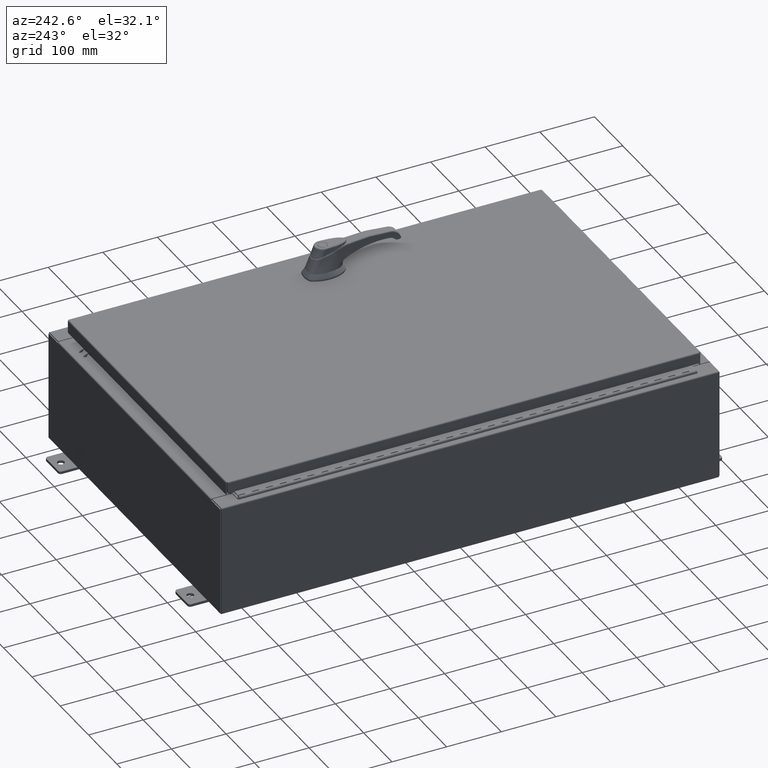
[diagram: clean part render]
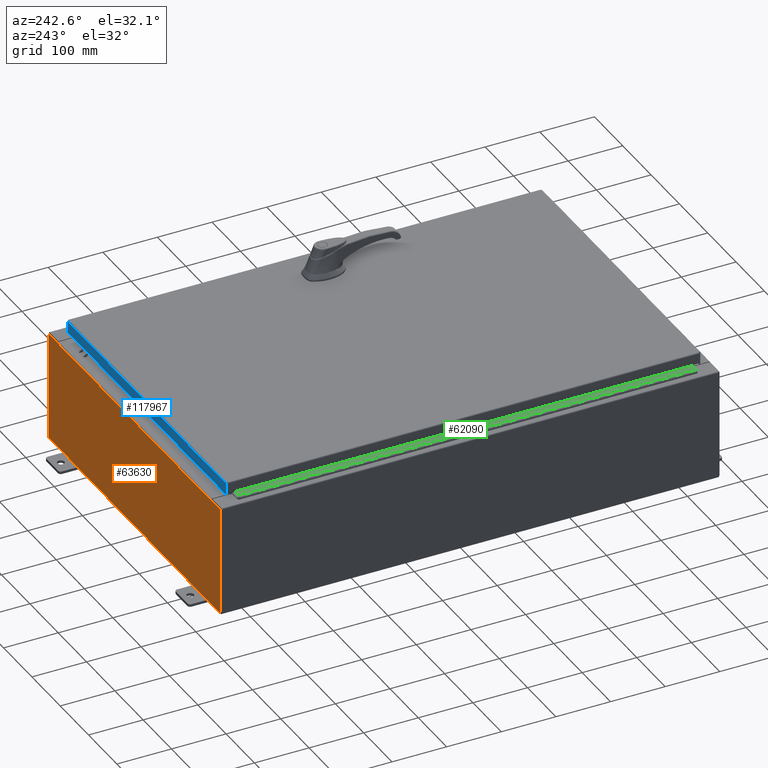
[diagram: same view with three faces highlighted in distinct colors, each labeled with its STEP entity id]
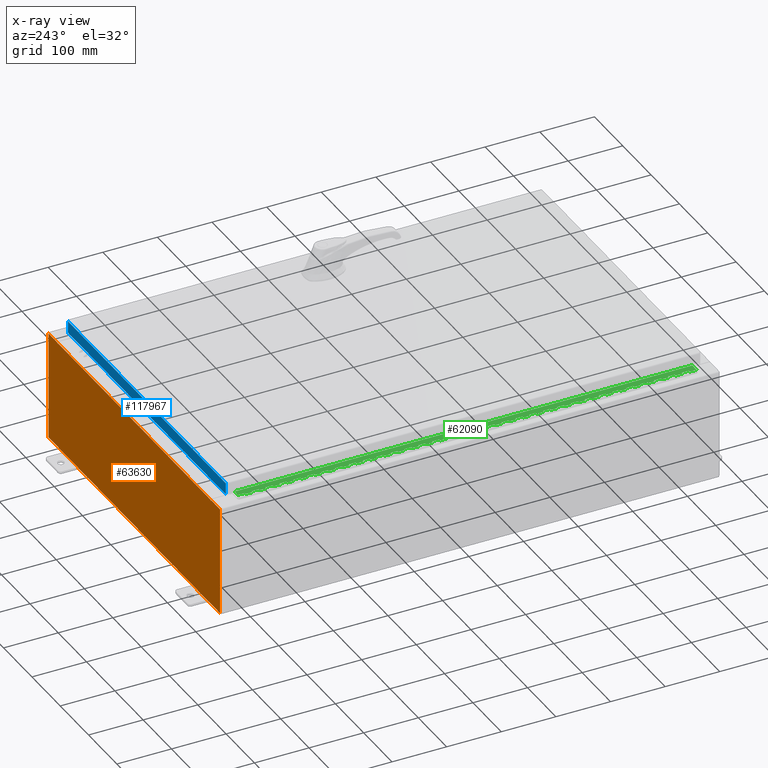
[diagram: x-ray of the same camera — body ghosted, the three highlighted faces saturated]
A machine part, auxiliary view with three faces highlighted in distinct colors.
The next image is the same camera in x-ray (body ghosted, the three faces saturated) — at least one of them is partly hidden behind the body in this view.
Their STEP definitions:

[orange] entity #63630 — the highlighted planar face has unit normal (0, -1, 0).
#192 = ORIENTED_EDGE ( 'NONE', *, *, #76351, .T. ) ;
#701 = DIRECTION ( 'NONE',  ( -0.0000000000000000000, -0.0000000000000000000, 1.000000000000000000 ) ) ;
#813 = CARTESIAN_POINT ( 'NONE',  ( 11.92530000000000000, 0.0000000000000000000, -3.925299999999999600 ) ) ;
#1644 = ORIENTED_EDGE ( 'NONE', *, *, #122311, .F. ) ;
#2297 = CARTESIAN_POINT ( 'NONE',  ( -11.92530000000000000, 0.0000000000000000000, 3.925299999999999600 ) ) ;
#2896 = EDGE_LOOP ( 'NONE', ( #95581, #104582, #24505, #37459, #1644, #89384, #87390, #103711, #192, #24057, #55568, #101006 ) ) ;
#5753 = DIRECTION ( 'NONE',  ( 1.000000000000000000, 0.0000000000000000000, 0.0000000000000000000 ) ) ;
#8758 = EDGE_CURVE ( 'NONE', #44215, #61811, #55067, .T. ) ;
#10637 = CARTESIAN_POINT ( 'NONE',  ( -10.63720000000000400, 1.024442997624098700E-016, 3.912299999999999700 ) ) ;
#10761 = DIRECTION ( 'NONE',  ( 1.000000000000000000, 0.0000000000000000000, 0.0000000000000000000 ) ) ;
#11840 = VECTOR ( 'NONE', #701, 39.37007874015748100 ) ;
#11935 = AXIS2_PLACEMENT_3D ( 'NONE', #77544, #20761, #87097 ) ;
#15943 = CARTESIAN_POINT ( 'NONE',  ( -10.63720000000000400, -0.0000000000000000000, 3.874949999999999700 ) ) ;
#16591 = CIRCLE ( 'NONE', #46644, 0.01867499999999949400 ) ;
#16683 = CARTESIAN_POINT ( 'NONE',  ( 11.92530000000000000, 0.0000000000000000000, 3.925299999999999600 ) ) ;
#17210 = VECTOR ( 'NONE', #91059, 39.37007874015748100 ) ;
#17721 = LINE ( 'NONE', #89016, #87464 ) ;
#19050 = CARTESIAN_POINT ( 'NONE',  ( -11.92530000000000000, 0.0000000000000000000, -3.925299999999999600 ) ) ;
#20761 = DIRECTION ( 'NONE',  ( -0.0000000000000000000, 1.000000000000000000, -0.0000000000000000000 ) ) ;
#21182 = VECTOR ( 'NONE', #54166, 39.37007874015748100 ) ;
#21937 = EDGE_CURVE ( 'NONE', #72206, #100807, #35622, .T. ) ;
#22009 = CARTESIAN_POINT ( 'NONE',  ( 10.63720000000000400, 0.0000000000000000000, 0.0000000000000000000 ) ) ;
#22437 = EDGE_CURVE ( 'NONE', #61811, #72293, #87527, .T. ) ;
#24057 = ORIENTED_EDGE ( 'NONE', *, *, #8758, .T. ) ;
#24505 = ORIENTED_EDGE ( 'NONE', *, *, #88183, .F. ) ;
#28107 = VERTEX_POINT ( 'NONE', #15943 ) ;
#28917 = CARTESIAN_POINT ( 'NONE',  ( 10.63720000000000400, 0.0000000000000000000, 3.874949999999999700 ) ) ;
#29197 = DIRECTION ( 'NONE',  ( 0.0000000000000000000, -1.000000000000000000, 0.0000000000000000000 ) ) ;
#33357 = EDGE_CURVE ( 'NONE', #34726, #59410, #80833, .T. ) ;
#34194 = CARTESIAN_POINT ( 'NONE',  ( 10.67454999999983300, -0.0000000000000000000, -4.633366117301815000E-013 ) ) ;
#34726 = VERTEX_POINT ( 'NONE', #35017 ) ;
#35017 = CARTESIAN_POINT ( 'NONE',  ( 10.67455000000000200, 0.0000000000000000000, 3.874949999999999700 ) ) ;
#35534 = DIRECTION ( 'NONE',  ( -1.000000000000000000, -0.0000000000000000000, -0.0000000000000000000 ) ) ;
#35622 = LINE ( 'NONE', #110072, #57863 ) ;
#35968 = CARTESIAN_POINT ( 'NONE',  ( -10.65587500000000200, 0.0000000000000000000, 3.874949999999999700 ) ) ;
#36234 = CARTESIAN_POINT ( 'NONE',  ( -11.92530000000000000, 0.0000000000000000000, 3.925299999999999600 ) ) ;
#36615 = AXIS2_PLACEMENT_3D ( 'NONE', #47804, #29197, #95644 ) ;
#37459 = ORIENTED_EDGE ( 'NONE', *, *, #21937, .T. ) ;
#44215 = VERTEX_POINT ( 'NONE', #813 ) ;
#44630 = CARTESIAN_POINT ( 'NONE',  ( 11.92530000000000000, 0.0000000000000000000, 3.925299999999999600 ) ) ;
#45456 = DIRECTION ( 'NONE',  ( 0.0000000000000000000, 0.0000000000000000000, -1.000000000000000000 ) ) ;
#46087 = VECTOR ( 'NONE', #102757, 39.37007874015748100 ) ;
#46644 = AXIS2_PLACEMENT_3D ( 'NONE', #35968, #102484, #45456 ) ;
#47804 = CARTESIAN_POINT ( 'NONE',  ( 0.0000000000000000000, 0.0000000000000000000, 0.0000000000000000000 ) ) ;
#48240 = VECTOR ( 'NONE', #10761, 39.37007874015748100 ) ;
#48751 = EDGE_CURVE ( 'NONE', #54599, #112683, #120008, .T. ) ;
#51126 = VECTOR ( 'NONE', #60985, 39.37007874015748100 ) ;
#53139 = VERTEX_POINT ( 'NONE', #76593 ) ;
#54166 = DIRECTION ( 'NONE',  ( 0.0000000000000000000, 0.0000000000000000000, -1.000000000000000000 ) ) ;
#54599 = VERTEX_POINT ( 'NONE', #118747 ) ;
#55067 = LINE ( 'NONE', #19050, #80287 ) ;
#55568 = ORIENTED_EDGE ( 'NONE', *, *, #22437, .T. ) ;
#57863 = VECTOR ( 'NONE', #5753, 39.37007874015748100 ) ;
#58008 = CARTESIAN_POINT ( 'NONE',  ( -11.92530000000000000, 0.0000000000000000000, 3.925299999999999600 ) ) ;
#59410 = VERTEX_POINT ( 'NONE', #28917 ) ;
#59784 = FACE_OUTER_BOUND ( 'NONE', #2896, .T. ) ;
#60985 = DIRECTION ( 'NONE',  ( 0.0000000000000000000, 0.0000000000000000000, -1.000000000000000000 ) ) ;
#61811 = VERTEX_POINT ( 'NONE', #93340 ) ;
#63630 = ADVANCED_FACE ( 'NONE', ( #59784 ), #85991, .F. ) ;
#65915 = EDGE_CURVE ( 'NONE', #72293, #98537, #90725, .T. ) ;
#67617 = LINE ( 'NONE', #34194, #17210 ) ;
#72206 = VERTEX_POINT ( 'NONE', #10637 ) ;
#72293 = VERTEX_POINT ( 'NONE', #2297 ) ;
#72634 = EDGE_CURVE ( 'NONE', #54599, #34726, #67617, .T. ) ;
#76351 = EDGE_CURVE ( 'NONE', #112683, #44215, #102969, .T. ) ;
#76357 = LINE ( 'NONE', #98915, #51126 ) ;
#76593 = CARTESIAN_POINT ( 'NONE',  ( -10.67455000000000200, 0.0000000000000000000, 3.874949999999999700 ) ) ;
#77544 = CARTESIAN_POINT ( 'NONE',  ( 10.65587500000000200, 0.0000000000000000000, 3.874949999999999700 ) ) ;
#78805 = DIRECTION ( 'NONE',  ( 0.0000000000000000000, 0.0000000000000000000, 1.000000000000000000 ) ) ;
#80287 = VECTOR ( 'NONE', #35534, 39.37007874015748100 ) ;
#80833 = CIRCLE ( 'NONE', #11935, 0.01867499999999949400 ) ;
#85728 = CARTESIAN_POINT ( 'NONE',  ( -11.92530000000000000, 0.0000000000000000000, 3.925299999999999600 ) ) ;
#85991 = PLANE ( 'NONE',  #36615 ) ;
#87097 = DIRECTION ( 'NONE',  ( 0.0000000000000000000, 0.0000000000000000000, -1.000000000000000000 ) ) ;
#87390 = ORIENTED_EDGE ( 'NONE', *, *, #72634, .F. ) ;
#87464 = VECTOR ( 'NONE', #98664, 39.37007874015748100 ) ;
#87527 = LINE ( 'NONE', #85728, #11840 ) ;
#88183 = EDGE_CURVE ( 'NONE', #72206, #28107, #76357, .T. ) ;
#89016 = CARTESIAN_POINT ( 'NONE',  ( -10.67455000000000200, -0.0000000000000000000, 0.0000000000000000000 ) ) ;
#89384 = ORIENTED_EDGE ( 'NONE', *, *, #33357, .F. ) ;
#90725 = LINE ( 'NONE', #36234, #46087 ) ;
#91059 = DIRECTION ( 'NONE',  ( -4.340572780400004900E-014, 0.0000000000000000000, -1.000000000000000000 ) ) ;
#93340 = CARTESIAN_POINT ( 'NONE',  ( -11.92530000000000000, 0.0000000000000000000, -3.925299999999999600 ) ) ;
#93492 = EDGE_CURVE ( 'NONE', #53139, #98537, #17721, .T. ) ;
#95581 = ORIENTED_EDGE ( 'NONE', *, *, #93492, .F. ) ;
#95644 = DIRECTION ( 'NONE',  ( 0.0000000000000000000, -0.0000000000000000000, -1.000000000000000000 ) ) ;
#98537 = VERTEX_POINT ( 'NONE', #110642 ) ;
#98664 = DIRECTION ( 'NONE',  ( 0.0000000000000000000, 0.0000000000000000000, 1.000000000000000000 ) ) ;
#98915 = CARTESIAN_POINT ( 'NONE',  ( -10.63720000000000400, -0.0000000000000000000, 0.0000000000000000000 ) ) ;
#100807 = VERTEX_POINT ( 'NONE', #101398 ) ;
#101006 = ORIENTED_EDGE ( 'NONE', *, *, #65915, .T. ) ;
#101398 = CARTESIAN_POINT ( 'NONE',  ( 10.63720000000000400, 0.0000000000000000000, 3.912299999999999700 ) ) ;
#102484 = DIRECTION ( 'NONE',  ( -0.0000000000000000000, 1.000000000000000000, -0.0000000000000000000 ) ) ;
#102757 = DIRECTION ( 'NONE',  ( 1.000000000000000000, 0.0000000000000000000, 0.0000000000000000000 ) ) ;
#102969 = LINE ( 'NONE', #44630, #21182 ) ;
#103711 = ORIENTED_EDGE ( 'NONE', *, *, #48751, .T. ) ;
#104582 = ORIENTED_EDGE ( 'NONE', *, *, #107107, .F. ) ;
#107107 = EDGE_CURVE ( 'NONE', #28107, #53139, #16591, .T. ) ;
#110072 = CARTESIAN_POINT ( 'NONE',  ( -10.63720000000000400, 1.024442997624098700E-016, 3.912299999999999700 ) ) ;
#110642 = CARTESIAN_POINT ( 'NONE',  ( -10.67455000000000200, 0.0000000000000000000, 3.925299999999999600 ) ) ;
#112683 = VERTEX_POINT ( 'NONE', #16683 ) ;
#114459 = VECTOR ( 'NONE', #78805, 39.37007874015748100 ) ;
#117459 = LINE ( 'NONE', #22009, #114459 ) ;
#118747 = CARTESIAN_POINT ( 'NONE',  ( 10.67455000000000200, 0.0000000000000000000, 3.925299999999999600 ) ) ;
#120008 = LINE ( 'NONE', #58008, #48240 ) ;
#122311 = EDGE_CURVE ( 'NONE', #59410, #100807, #117459, .T. ) ;

[blue] entity #117967 — the highlighted planar face has unit normal (0, -1, -0).
#3297 = LINE ( 'NONE', #113066, #101427 ) ;
#3332 = ORIENTED_EDGE ( 'NONE', *, *, #102742, .T. ) ;
#8149 = CARTESIAN_POINT ( 'NONE',  ( -10.98915786437627200, 17.09400000000000800, -0.07469999999999980800 ) ) ;
#10359 = PLANE ( 'NONE',  #22010 ) ;
#17014 = CARTESIAN_POINT ( 'NONE',  ( 10.98915786437626500, 17.09400000000000800, -0.08770000000000008300 ) ) ;
#17697 = DIRECTION ( 'NONE',  ( -0.0000000000000000000, 2.532419924601858200E-015, -1.000000000000000000 ) ) ;
#19076 = CARTESIAN_POINT ( 'NONE',  ( -5.337582435621772200E-030, 17.09400000000000800, 4.354999984715576500E-014 ) ) ;
#19907 = DIRECTION ( 'NONE',  ( 3.122488847327582500E-031, -1.000000000000000000, -2.532419924601858200E-015 ) ) ;
#21946 = VECTOR ( 'NONE', #27698, 39.37007874015748100 ) ;
#22010 = AXIS2_PLACEMENT_3D ( 'NONE', #19076, #19907, #86245 ) ;
#23726 = CARTESIAN_POINT ( 'NONE',  ( -10.98915786437627200, 17.09400000000000800, -0.9377000000000025300 ) ) ;
#25405 = LINE ( 'NONE', #107758, #75880 ) ;
#25735 = VERTEX_POINT ( 'NONE', #31791 ) ;
#27698 = DIRECTION ( 'NONE',  ( 1.000000000000000000, -4.379057701015054300E-047, 1.233005954894504400E-016 ) ) ;
#31791 = CARTESIAN_POINT ( 'NONE',  ( -10.98915786437626900, 17.09400000000000800, -0.08770000000000008300 ) ) ;
#34297 = ORIENTED_EDGE ( 'NONE', *, *, #107145, .F. ) ;
#44734 = EDGE_CURVE ( 'NONE', #64020, #72377, #50092, .T. ) ;
#50092 = LINE ( 'NONE', #122971, #21946 ) ;
#50685 = DIRECTION ( 'NONE',  ( -1.000000000000000000, -3.122488847327583000E-031, -7.817847125977018100E-046 ) ) ;
#50789 = CARTESIAN_POINT ( 'NONE',  ( 10.98915786437626500, 17.09400000000000800, -0.9376999999999997600 ) ) ;
#52671 = VERTEX_POINT ( 'NONE', #17014 ) ;
#56898 = FACE_OUTER_BOUND ( 'NONE', #64269, .T. ) ;
#58129 = VECTOR ( 'NONE', #17697, 39.37007874015748100 ) ;
#64020 = VERTEX_POINT ( 'NONE', #23726 ) ;
#64269 = EDGE_LOOP ( 'NONE', ( #71811, #3332, #87974, #34297 ) ) ;
#65392 = EDGE_CURVE ( 'NONE', #52671, #25735, #25405, .T. ) ;
#71811 = ORIENTED_EDGE ( 'NONE', *, *, #65392, .F. ) ;
#72377 = VERTEX_POINT ( 'NONE', #50789 ) ;
#75880 = VECTOR ( 'NONE', #50685, 39.37007874015748100 ) ;
#86245 = DIRECTION ( 'NONE',  ( 0.0000000000000000000, 2.532419924601858200E-015, -1.000000000000000000 ) ) ;
#87974 = ORIENTED_EDGE ( 'NONE', *, *, #44734, .F. ) ;
#101427 = VECTOR ( 'NONE', #122657, 39.37007874015748100 ) ;
#102742 = EDGE_CURVE ( 'NONE', #52671, #72377, #3297, .T. ) ;
#107145 = EDGE_CURVE ( 'NONE', #25735, #64020, #108851, .T. ) ;
#107758 = CARTESIAN_POINT ( 'NONE',  ( -11.07800000000000300, 17.09400000000000800, -0.08770000000000008300 ) ) ;
#108851 = LINE ( 'NONE', #8149, #58129 ) ;
#113066 = CARTESIAN_POINT ( 'NONE',  ( 10.98915786437626500, 17.09400000000000800, 4.354999984715576500E-014 ) ) ;
#117967 = ADVANCED_FACE ( 'NONE', ( #56898 ), #10359, .F. ) ;
#122657 = DIRECTION ( 'NONE',  ( 0.0000000000000000000, 2.532419924601858200E-015, -1.000000000000000000 ) ) ;
#122971 = CARTESIAN_POINT ( 'NONE',  ( -11.07800000000000300, 17.09400000000000800, -0.9377000000000025300 ) ) ;

[green] entity #62090 — the highlighted planar face has unit normal (-0, -0, 1).
#96 = ORIENTED_EDGE ( 'NONE', *, *, #41719, .T. ) ;
#290 = DIRECTION ( 'NONE',  ( -3.389037039080723100E-015, -1.000000000000000000, 0.0000000000000000000 ) ) ;
#334 = CARTESIAN_POINT ( 'NONE',  ( -0.6869999999999982800, 0.5504999999999997700, -5.500000000000000000 ) ) ;
#399 = CARTESIAN_POINT ( 'NONE',  ( -0.6869999999999982800, 0.5504999999999997700, -28.50000000000000000 ) ) ;
#539 = CARTESIAN_POINT ( 'NONE',  ( -0.6869999999999982800, 0.5504999999999997700, -23.99999999999999600 ) ) ;
#778 = VECTOR ( 'NONE', #103092, 39.37007874015748100 ) ;
#828 = ORIENTED_EDGE ( 'NONE', *, *, #36317, .F. ) ;
#897 = CARTESIAN_POINT ( 'NONE',  ( -0.6869999999999978300, 0.6754999999999996600, -33.00000000000000000 ) ) ;
#1032 = VERTEX_POINT ( 'NONE', #57932 ) ;
#1169 = VECTOR ( 'NONE', #114865, 39.37007874015748100 ) ;
#1357 = VERTEX_POINT ( 'NONE', #113722 ) ;
#1358 = VECTOR ( 'NONE', #53853, 39.37007874015748100 ) ;
#1495 = ORIENTED_EDGE ( 'NONE', *, *, #79278, .F. ) ;
#1674 = DIRECTION ( 'NONE',  ( 0.0000000000000000000, -0.0000000000000000000, -1.000000000000000000 ) ) ;
#1691 = ORIENTED_EDGE ( 'NONE', *, *, #54160, .F. ) ;
#1698 = ORIENTED_EDGE ( 'NONE', *, *, #97481, .F. ) ;
#1771 = ORIENTED_EDGE ( 'NONE', *, *, #118823, .F. ) ;
#1907 = CARTESIAN_POINT ( 'NONE',  ( -0.6869999999999982800, 0.5504999999999997700, -27.50000000000000000 ) ) ;
#2004 = LINE ( 'NONE', #101925, #74675 ) ;
#2399 = EDGE_CURVE ( 'NONE', #16223, #55163, #15910, .T. ) ;
#2411 = EDGE_CURVE ( 'NONE', #95891, #39750, #117142, .T. ) ;
#2777 = EDGE_CURVE ( 'NONE', #70223, #73111, #112554, .T. ) ;
#2960 = CARTESIAN_POINT ( 'NONE',  ( -0.6869999999999973900, 0.8004999999999995500, -12.49999999999999800 ) ) ;
#3368 = EDGE_CURVE ( 'NONE', #92553, #51262, #23196, .T. ) ;
#3374 = VERTEX_POINT ( 'NONE', #67209 ) ;
#3456 = ORIENTED_EDGE ( 'NONE', *, *, #39586, .F. ) ;
#3457 = VECTOR ( 'NONE', #107499, 39.37007874015748100 ) ;
#3521 = ORIENTED_EDGE ( 'NONE', *, *, #66662, .F. ) ;
#3746 = VECTOR ( 'NONE', #8687, 39.37007874015748100 ) ;
#3998 = VERTEX_POINT ( 'NONE', #94362 ) ;
#4026 = LINE ( 'NONE', #38563, #102160 ) ;
#4082 = DIRECTION ( 'NONE',  ( -3.389037039080723100E-015, -1.000000000000000000, 0.0000000000000000000 ) ) ;
#4150 = VECTOR ( 'NONE', #115593, 39.37007874015748100 ) ;
#4268 = LINE ( 'NONE', #20873, #102407 ) ;
#4443 = VERTEX_POINT ( 'NONE', #100137 ) ;
#4534 = CARTESIAN_POINT ( 'NONE',  ( -0.6869999999999982800, 0.5504999999999997700, -12.49999999999999800 ) ) ;
#4546 = VECTOR ( 'NONE', #53302, 39.37007874015748100 ) ;
#4624 = CARTESIAN_POINT ( 'NONE',  ( -0.6869999999999982800, 0.5504999999999997700, -15.50000000000000000 ) ) ;
#4664 = EDGE_CURVE ( 'NONE', #120299, #8211, #122743, .T. ) ;
#4680 = VECTOR ( 'NONE', #79470, 39.37007874015748100 ) ;
#4805 = EDGE_CURVE ( 'NONE', #47286, #26255, #15596, .T. ) ;
#5167 = CARTESIAN_POINT ( 'NONE',  ( -0.6869999999999982800, 0.5504999999999997700, -16.00000000000000000 ) ) ;
#5343 = ORIENTED_EDGE ( 'NONE', *, *, #73775, .T. ) ;
#5450 = ORIENTED_EDGE ( 'NONE', *, *, #12082, .F. ) ;
#5469 = LINE ( 'NONE', #53678, #27721 ) ;
#6003 = CARTESIAN_POINT ( 'NONE',  ( -0.6869999999999973900, 0.8004999999999995500, -11.50000000000000000 ) ) ;
#6034 = ORIENTED_EDGE ( 'NONE', *, *, #85686, .F. ) ;
#6146 = VERTEX_POINT ( 'NONE', #48254 ) ;
#6300 = CARTESIAN_POINT ( 'NONE',  ( -0.6869999999999982800, 0.5504999999999997700, -1.499999999999999800 ) ) ;
#6351 = CARTESIAN_POINT ( 'NONE',  ( -0.6869999999999982800, 0.5504999999999997700, -25.50000000000000400 ) ) ;
#6598 = LINE ( 'NONE', #69212, #54084 ) ;
#7430 = ORIENTED_EDGE ( 'NONE', *, *, #9882, .T. ) ;
#7564 = EDGE_CURVE ( 'NONE', #28353, #75422, #72993, .T. ) ;
#7719 = ORIENTED_EDGE ( 'NONE', *, *, #94981, .F. ) ;
#7730 = CARTESIAN_POINT ( 'NONE',  ( -0.6869999999999978300, 0.6754999999999996600, -27.00000000000000000 ) ) ;
#7964 = VERTEX_POINT ( 'NONE', #8483 ) ;
#8051 = VECTOR ( 'NONE', #90103, 39.37007874015748100 ) ;
#8120 = CARTESIAN_POINT ( 'NONE',  ( -0.6869999999999978300, 0.6754999999999996600, -33.00000000000000000 ) ) ;
#8211 = VERTEX_POINT ( 'NONE', #91287 ) ;
#8403 = ORIENTED_EDGE ( 'NONE', *, *, #4664, .F. ) ;
#8411 = ORIENTED_EDGE ( 'NONE', *, *, #112611, .F. ) ;
#8483 = CARTESIAN_POINT ( 'NONE',  ( -0.6869999999999978300, 0.6754999999999996600, -32.50000000000000000 ) ) ;
#8687 = DIRECTION ( 'NONE',  ( 0.0000000000000000000, -0.0000000000000000000, -1.000000000000000000 ) ) ;
#8707 = CARTESIAN_POINT ( 'NONE',  ( -0.6869999999999973900, 0.8004999999999995500, -18.50000000000000000 ) ) ;
#8789 = ORIENTED_EDGE ( 'NONE', *, *, #47964, .F. ) ;
#8884 = VERTEX_POINT ( 'NONE', #16544 ) ;
#8978 = LINE ( 'NONE', #83507, #107159 ) ;
#9165 = CARTESIAN_POINT ( 'NONE',  ( -0.6869999999999973900, 0.8004999999999995500, -32.00000000000000000 ) ) ;
#9169 = CARTESIAN_POINT ( 'NONE',  ( -0.6869999999999982800, 0.5504999999999997700, -18.50000000000000000 ) ) ;
#9369 = LINE ( 'NONE', #9165, #59765 ) ;
#9524 = CARTESIAN_POINT ( 'NONE',  ( -0.6869999999999978300, 0.6754999999999996600, -3.500000000000000000 ) ) ;
#9683 = CARTESIAN_POINT ( 'NONE',  ( -0.6869999999999973900, 0.8004999999999995500, -31.00000000000000000 ) ) ;
#9882 = EDGE_CURVE ( 'NONE', #28353, #95810, #68267, .T. ) ;
#9897 = CARTESIAN_POINT ( 'NONE',  ( -0.6870000000000022800, -0.6245000000000003900, -33.00000000000000000 ) ) ;
#9959 = ORIENTED_EDGE ( 'NONE', *, *, #48560, .F. ) ;
#10111 = VERTEX_POINT ( 'NONE', #5167 ) ;
#10205 = VERTEX_POINT ( 'NONE', #27903 ) ;
#10321 = CARTESIAN_POINT ( 'NONE',  ( -0.6869999999999982800, 0.5504999999999997700, -21.50000000000000400 ) ) ;
#10324 = EDGE_CURVE ( 'NONE', #39651, #28361, #89049, .T. ) ;
#10326 = CARTESIAN_POINT ( 'NONE',  ( -0.6869999999999978300, 0.6754999999999996600, -28.99999999999999600 ) ) ;
#10348 = LINE ( 'NONE', #63811, #108506 ) ;
#10407 = VECTOR ( 'NONE', #52049, 39.37007874015748100 ) ;
#10505 = ORIENTED_EDGE ( 'NONE', *, *, #42604, .F. ) ;
#10737 = CARTESIAN_POINT ( 'NONE',  ( -0.6869999999999973900, 0.8004999999999995500, -5.000000000000000000 ) ) ;
#10848 = CARTESIAN_POINT ( 'NONE',  ( -0.6869999999999978300, 0.6754999999999996600, -33.00000000000000000 ) ) ;
#10914 = ORIENTED_EDGE ( 'NONE', *, *, #75067, .T. ) ;
#11032 = ORIENTED_EDGE ( 'NONE', *, *, #55496, .F. ) ;
#11203 = CARTESIAN_POINT ( 'NONE',  ( -0.6869999999999978300, 0.6754999999999996600, -31.50000000000000400 ) ) ;
#11529 = CARTESIAN_POINT ( 'NONE',  ( -0.6869999999999978300, 0.6754999999999996600, -33.00000000000000000 ) ) ;
#11678 = ORIENTED_EDGE ( 'NONE', *, *, #58228, .F. ) ;
#11802 = ORIENTED_EDGE ( 'NONE', *, *, #38810, .F. ) ;
#12053 = CARTESIAN_POINT ( 'NONE',  ( -0.6869999999999982800, 0.5504999999999997700, -30.50000000000000400 ) ) ;
#12082 = EDGE_CURVE ( 'NONE', #7964, #75988, #31017, .T. ) ;
#12094 = EDGE_CURVE ( 'NONE', #10111, #121322, #59133, .T. ) ;
#12200 = VERTEX_POINT ( 'NONE', #65720 ) ;
#12490 = DIRECTION ( 'NONE',  ( -3.389037039080723100E-015, -1.000000000000000000, 0.0000000000000000000 ) ) ;
#12671 = VERTEX_POINT ( 'NONE', #68858 ) ;
#12696 = EDGE_CURVE ( 'NONE', #55805, #37200, #73876, .T. ) ;
#12713 = EDGE_CURVE ( 'NONE', #10205, #90447, #70862, .T. ) ;
#12762 = ORIENTED_EDGE ( 'NONE', *, *, #70260, .F. ) ;
#12829 = DIRECTION ( 'NONE',  ( 0.0000000000000000000, -0.0000000000000000000, -1.000000000000000000 ) ) ;
#12971 = VECTOR ( 'NONE', #35258, 39.37007874015748100 ) ;
#13036 = EDGE_CURVE ( 'NONE', #39178, #99129, #81242, .T. ) ;
#13152 = CARTESIAN_POINT ( 'NONE',  ( -0.6869999999999982800, 0.5504999999999997700, -10.50000000000000000 ) ) ;
#13344 = CARTESIAN_POINT ( 'NONE',  ( -0.6869999999999978300, 0.6754999999999996600, -12.99999999999999800 ) ) ;
#13378 = ORIENTED_EDGE ( 'NONE', *, *, #12713, .F. ) ;
#13502 = CARTESIAN_POINT ( 'NONE',  ( -0.6869999999999982800, 0.5504999999999997700, -14.49999999999999800 ) ) ;
#13513 = VERTEX_POINT ( 'NONE', #86344 ) ;
#13661 = DIRECTION ( 'NONE',  ( -3.389037039080723100E-015, -1.000000000000000000, 0.0000000000000000000 ) ) ;
#13934 = ORIENTED_EDGE ( 'NONE', *, *, #41661, .F. ) ;
#13940 = CARTESIAN_POINT ( 'NONE',  ( -0.6869999999999978300, 0.6754999999999996600, -32.00000000000000000 ) ) ;
#14007 = CARTESIAN_POINT ( 'NONE',  ( -0.6869999999999973900, 0.8004999999999995500, -14.99999999999999800 ) ) ;
#14137 = CARTESIAN_POINT ( 'NONE',  ( -0.6869999999999973900, 0.8004999999999995500, -21.50000000000000400 ) ) ;
#14310 = EDGE_CURVE ( 'NONE', #122033, #40986, #105075, .T. ) ;
#14756 = CARTESIAN_POINT ( 'NONE',  ( -0.6869999999999978300, 0.6754999999999996600, -1.499999999999999800 ) ) ;
#14775 = VECTOR ( 'NONE', #90380, 39.37007874015748100 ) ;
#14939 = CARTESIAN_POINT ( 'NONE',  ( -0.6869999999999978300, 0.6754999999999996600, -9.000000000000000000 ) ) ;
#15151 = CARTESIAN_POINT ( 'NONE',  ( -0.6869999999999978300, 0.6754999999999996600, -2.000000000000000000 ) ) ;
#15174 = LINE ( 'NONE', #399, #37438 ) ;
#15191 = EDGE_CURVE ( 'NONE', #37429, #53000, #100516, .T. ) ;
#15315 = CARTESIAN_POINT ( 'NONE',  ( -0.6869999999999982800, 0.5504999999999997700, -2.000000000000000000 ) ) ;
#15356 = LINE ( 'NONE', #117344, #37625 ) ;
#15596 = LINE ( 'NONE', #68573, #91302 ) ;
#15764 = CARTESIAN_POINT ( 'NONE',  ( -0.6869999999999982800, 0.5504999999999997700, -32.50000000000000000 ) ) ;
#15821 = CARTESIAN_POINT ( 'NONE',  ( -0.6869999999999982800, 0.5504999999999997700, -11.99999999999999800 ) ) ;
#15843 = DIRECTION ( 'NONE',  ( 0.0000000000000000000, -0.0000000000000000000, -1.000000000000000000 ) ) ;
#15882 = ORIENTED_EDGE ( 'NONE', *, *, #35552, .F. ) ;
#15886 = EDGE_CURVE ( 'NONE', #40944, #34813, #39466, .T. ) ;
#15910 = LINE ( 'NONE', #121668, #12971 ) ;
#16055 = EDGE_CURVE ( 'NONE', #72599, #64786, #55690, .T. ) ;
#16223 = VERTEX_POINT ( 'NONE', #57748 ) ;
#16246 = EDGE_CURVE ( 'NONE', #85816, #22720, #69002, .T. ) ;
#16473 = DIRECTION ( 'NONE',  ( 0.0000000000000000000, -0.0000000000000000000, -1.000000000000000000 ) ) ;
#16511 = CARTESIAN_POINT ( 'NONE',  ( -0.6869999999999982800, 0.5504999999999997700, -10.50000000000000000 ) ) ;
#16544 = CARTESIAN_POINT ( 'NONE',  ( -0.6869999999999982800, 0.5504999999999997700, -8.500000000000000000 ) ) ;
#16558 = EDGE_CURVE ( 'NONE', #101453, #56841, #79390, .T. ) ;
#16706 = LINE ( 'NONE', #50316, #86480 ) ;
#16925 = ORIENTED_EDGE ( 'NONE', *, *, #120656, .F. ) ;
#16973 = VECTOR ( 'NONE', #24488, 39.37007874015748100 ) ;
#17140 = EDGE_CURVE ( 'NONE', #42631, #106739, #24401, .T. ) ;
#17317 = VERTEX_POINT ( 'NONE', #50858 ) ;
#17536 = EDGE_CURVE ( 'NONE', #85837, #80263, #73276, .T. ) ;
#17645 = LINE ( 'NONE', #31008, #90419 ) ;
#17834 = VECTOR ( 'NONE', #18071, 39.37007874015748100 ) ;
#18038 = VERTEX_POINT ( 'NONE', #82966 ) ;
#18071 = DIRECTION ( 'NONE',  ( 0.0000000000000000000, 0.0000000000000000000, 1.000000000000000000 ) ) ;
#18189 = LINE ( 'NONE', #56621, #68599 ) ;
#18217 = ORIENTED_EDGE ( 'NONE', *, *, #47456, .F. ) ;
#18624 = CARTESIAN_POINT ( 'NONE',  ( -0.6869999999999982800, 0.5504999999999997700, -20.50000000000000400 ) ) ;
#18920 = ORIENTED_EDGE ( 'NONE', *, *, #12094, .F. ) ;
#18977 = CARTESIAN_POINT ( 'NONE',  ( -0.6869999999999982800, 0.5504999999999997700, -7.499999999999999100 ) ) ;
#18988 = VERTEX_POINT ( 'NONE', #32674 ) ;
#19029 = PLANE ( 'NONE',  #39726 ) ;
#19041 = LINE ( 'NONE', #15764, #41303 ) ;
#19102 = VERTEX_POINT ( 'NONE', #119207 ) ;
#19141 = ORIENTED_EDGE ( 'NONE', *, *, #73075, .F. ) ;
#19345 = CARTESIAN_POINT ( 'NONE',  ( -0.6869999999999978300, 0.6754999999999996600, -33.00000000000000000 ) ) ;
#19446 = DIRECTION ( 'NONE',  ( 3.369016658928398200E-015, 1.000000000000000000, 0.0000000000000000000 ) ) ;
#19456 = LINE ( 'NONE', #114010, #60924 ) ;
#19511 = DIRECTION ( 'NONE',  ( 0.0000000000000000000, -0.0000000000000000000, -1.000000000000000000 ) ) ;
#19641 = LINE ( 'NONE', #44199, #70001 ) ;
#19691 = LINE ( 'NONE', #63830, #70030 ) ;
#19865 = DIRECTION ( 'NONE',  ( 3.389037039080723100E-015, 1.000000000000000000, -0.0000000000000000000 ) ) ;
#19870 = EDGE_CURVE ( 'NONE', #56841, #61828, #15174, .T. ) ;
#20006 = DIRECTION ( 'NONE',  ( -3.389037039080723100E-015, -1.000000000000000000, 0.0000000000000000000 ) ) ;
#20090 = VECTOR ( 'NONE', #91739, 39.37007874015748100 ) ;
#20223 = VERTEX_POINT ( 'NONE', #31036 ) ;
#20273 = EDGE_CURVE ( 'NONE', #44525, #16223, #55109, .T. ) ;
#20375 = CARTESIAN_POINT ( 'NONE',  ( -0.6869999999999982800, 0.5504999999999997700, -30.50000000000000400 ) ) ;
#20441 = DIRECTION ( 'NONE',  ( 3.389037039080723100E-015, 1.000000000000000000, -0.0000000000000000000 ) ) ;
#20686 = CARTESIAN_POINT ( 'NONE',  ( -0.6869999999999982800, 0.5504999999999997700, -27.50000000000000000 ) ) ;
#20706 = LINE ( 'NONE', #87866, #93468 ) ;
#20873 = CARTESIAN_POINT ( 'NONE',  ( -0.6869999999999973900, 0.8004999999999995500, -7.499999999999999100 ) ) ;
#21139 = ORIENTED_EDGE ( 'NONE', *, *, #78923, .T. ) ;
#21231 = ORIENTED_EDGE ( 'NONE', *, *, #89694, .F. ) ;
#21438 = VECTOR ( 'NONE', #105844, 39.37007874015748100 ) ;
#21454 = VERTEX_POINT ( 'NONE', #71932 ) ;
#21578 = CARTESIAN_POINT ( 'NONE',  ( -0.6869999999999982800, 0.5504999999999997700, -7.499999999999999100 ) ) ;
#21932 = CARTESIAN_POINT ( 'NONE',  ( -0.6869999999999982800, 0.5504999999999997700, -29.50000000000000000 ) ) ;
#22043 = VERTEX_POINT ( 'NONE', #15315 ) ;
#22245 = VERTEX_POINT ( 'NONE', #83216 ) ;
#22401 = VERTEX_POINT ( 'NONE', #18977 ) ;
#22648 = EDGE_CURVE ( 'NONE', #18038, #103012, #26824, .T. ) ;
#22656 = VERTEX_POINT ( 'NONE', #71078 ) ;
#22720 = VERTEX_POINT ( 'NONE', #33836 ) ;
#22757 = ORIENTED_EDGE ( 'NONE', *, *, #35425, .F. ) ;
#22833 = VERTEX_POINT ( 'NONE', #101582 ) ;
#22998 = EDGE_CURVE ( 'NONE', #112057, #51313, #8978, .T. ) ;
#23196 = LINE ( 'NONE', #8120, #70579 ) ;
#23742 = VECTOR ( 'NONE', #44162, 39.37007874015748100 ) ;
#24032 = LINE ( 'NONE', #113665, #74442 ) ;
#24206 = EDGE_CURVE ( 'NONE', #21454, #117706, #30060, .T. ) ;
#24267 = ORIENTED_EDGE ( 'NONE', *, *, #123028, .F. ) ;
#24307 = CARTESIAN_POINT ( 'NONE',  ( -0.6869999999999973900, 0.8004999999999995500, -32.50000000000000000 ) ) ;
#24319 = CARTESIAN_POINT ( 'NONE',  ( -0.6869999999999982800, 0.5504999999999997700, -23.50000000000000000 ) ) ;
#24401 = LINE ( 'NONE', #30623, #49616 ) ;
#24445 = LINE ( 'NONE', #86677, #71896 ) ;
#24488 = DIRECTION ( 'NONE',  ( -3.389037039080723100E-015, -1.000000000000000000, 0.0000000000000000000 ) ) ;
#25261 = DIRECTION ( 'NONE',  ( 0.0000000000000000000, -0.0000000000000000000, -1.000000000000000000 ) ) ;
#25524 = VECTOR ( 'NONE', #104717, 39.37007874015748100 ) ;
#25829 = DIRECTION ( 'NONE',  ( 0.0000000000000000000, 0.0000000000000000000, 1.000000000000000000 ) ) ;
#26020 = CARTESIAN_POINT ( 'NONE',  ( -0.6869999999999982800, 0.5504999999999997700, -16.50000000000000000 ) ) ;
#26038 = EDGE_CURVE ( 'NONE', #3998, #57558, #101386, .T. ) ;
#26128 = DIRECTION ( 'NONE',  ( -3.389037039080723100E-015, -1.000000000000000000, 0.0000000000000000000 ) ) ;
#26255 = VERTEX_POINT ( 'NONE', #13344 ) ;
#26285 = VERTEX_POINT ( 'NONE', #32425 ) ;
#26381 = LINE ( 'NONE', #105246, #1169 ) ;
#26389 = LINE ( 'NONE', #67992, #4150 ) ;
#26509 = ORIENTED_EDGE ( 'NONE', *, *, #78365, .F. ) ;
#26567 = LINE ( 'NONE', #62942, #1358 ) ;
#26699 = DIRECTION ( 'NONE',  ( -3.389037039080723100E-015, -1.000000000000000000, 0.0000000000000000000 ) ) ;
#26744 = EDGE_CURVE ( 'NONE', #63751, #95891, #34334, .T. ) ;
#26799 = CARTESIAN_POINT ( 'NONE',  ( -0.6869999999999982800, 0.5504999999999997700, -2.500000000000000000 ) ) ;
#26824 = LINE ( 'NONE', #42546, #99686 ) ;
#26876 = VECTOR ( 'NONE', #42700, 39.37007874015748100 ) ;
#26886 = VECTOR ( 'NONE', #16473, 39.37007874015748100 ) ;
#27102 = CARTESIAN_POINT ( 'NONE',  ( -0.6869999999999973900, 0.8004999999999995500, -14.49999999999999800 ) ) ;
#27321 = CARTESIAN_POINT ( 'NONE',  ( -0.6869999999999982800, 0.5504999999999997700, -9.500000000000000000 ) ) ;
#27556 = CARTESIAN_POINT ( 'NONE',  ( -0.6869999999999978300, 0.6754999999999996600, -12.49999999999999800 ) ) ;
#27705 = VERTEX_POINT ( 'NONE', #68233 ) ;
#27721 = VECTOR ( 'NONE', #110739, 39.37007874015748100 ) ;
#27793 = ORIENTED_EDGE ( 'NONE', *, *, #96128, .T. ) ;
#27835 = CARTESIAN_POINT ( 'NONE',  ( -0.6869999999999978300, 0.6754999999999996600, -33.00000000000000000 ) ) ;
#27903 = CARTESIAN_POINT ( 'NONE',  ( -0.6869999999999978300, 0.6754999999999996600, -21.50000000000000400 ) ) ;
#27939 = VERTEX_POINT ( 'NONE', #13940 ) ;
#28014 = DIRECTION ( 'NONE',  ( -3.389037039080723100E-015, -1.000000000000000000, 0.0000000000000000000 ) ) ;
#28044 = VERTEX_POINT ( 'NONE', #15151 ) ;
#28195 = CARTESIAN_POINT ( 'NONE',  ( -0.6869999999999978300, 0.6754999999999996600, -16.50000000000000000 ) ) ;
#28222 = EDGE_CURVE ( 'NONE', #50020, #44525, #65195, .T. ) ;
#28288 = VERTEX_POINT ( 'NONE', #75162 ) ;
#28353 = VERTEX_POINT ( 'NONE', #57355 ) ;
#28361 = VERTEX_POINT ( 'NONE', #113641 ) ;
#28427 = LINE ( 'NONE', #60847, #56608 ) ;
#28435 = CARTESIAN_POINT ( 'NONE',  ( -0.6869999999999973900, 0.8004999999999995500, -26.50000000000000400 ) ) ;
#28558 = CARTESIAN_POINT ( 'NONE',  ( -0.6869999999999978300, 0.6754999999999996600, -2.500000000000000000 ) ) ;
#28599 = LINE ( 'NONE', #88024, #73045 ) ;
#28611 = EDGE_CURVE ( 'NONE', #84175, #19102, #117484, .T. ) ;
#28833 = EDGE_CURVE ( 'NONE', #17317, #26255, #51800, .T. ) ;
#28843 = LINE ( 'NONE', #27835, #101717 ) ;
#28931 = CARTESIAN_POINT ( 'NONE',  ( -0.6869999999999973900, 0.8004999999999995500, -0.5000000000000000000 ) ) ;
#28961 = EDGE_CURVE ( 'NONE', #104636, #102853, #71041, .T. ) ;
#29388 = DIRECTION ( 'NONE',  ( 0.0000000000000000000, -0.0000000000000000000, -1.000000000000000000 ) ) ;
#29530 = VECTOR ( 'NONE', #38440, 39.37007874015748100 ) ;
#29576 = VERTEX_POINT ( 'NONE', #55334 ) ;
#29904 = CARTESIAN_POINT ( 'NONE',  ( -0.6869999999999982800, 0.5504999999999997700, -20.00000000000000000 ) ) ;
#30060 = LINE ( 'NONE', #80351, #102917 ) ;
#30092 = LINE ( 'NONE', #101064, #77537 ) ;
#30135 = DIRECTION ( 'NONE',  ( -3.389037039080723100E-015, -1.000000000000000000, 0.0000000000000000000 ) ) ;
#30203 = ORIENTED_EDGE ( 'NONE', *, *, #97428, .T. ) ;
#30528 = VECTOR ( 'NONE', #122391, 39.37007874015748100 ) ;
#30623 = CARTESIAN_POINT ( 'NONE',  ( -0.6869999999999973900, 0.8004999999999995500, -6.000000000000000900 ) ) ;
#30625 = ORIENTED_EDGE ( 'NONE', *, *, #114789, .T. ) ;
#30657 = ORIENTED_EDGE ( 'NONE', *, *, #12696, .F. ) ;
#30667 = CARTESIAN_POINT ( 'NONE',  ( -0.6869999999999973900, 0.8004999999999995500, -11.99999999999999800 ) ) ;
#30848 = CARTESIAN_POINT ( 'NONE',  ( -0.6869999999999978300, 0.6754999999999996600, -9.500000000000000000 ) ) ;
#31008 = CARTESIAN_POINT ( 'NONE',  ( -0.6870000000000022800, -0.6245000000000003900, -33.00000000000000000 ) ) ;
#31017 = LINE ( 'NONE', #24307, #103851 ) ;
#31036 = CARTESIAN_POINT ( 'NONE',  ( -0.6869999999999982800, 0.5504999999999997700, -2.999999999999999600 ) ) ;
#31368 = EDGE_CURVE ( 'NONE', #113711, #6146, #99110, .T. ) ;
#31489 = DIRECTION ( 'NONE',  ( 0.0000000000000000000, -0.0000000000000000000, -1.000000000000000000 ) ) ;
#31583 = ORIENTED_EDGE ( 'NONE', *, *, #2777, .T. ) ;
#31845 = CARTESIAN_POINT ( 'NONE',  ( -0.6869999999999982800, 0.5504999999999997700, -6.499999999999999100 ) ) ;
#31852 = VERTEX_POINT ( 'NONE', #72128 ) ;
#31880 = CARTESIAN_POINT ( 'NONE',  ( -0.6869999999999973900, 0.8004999999999995500, -1.499999999999999800 ) ) ;
#32204 = VECTOR ( 'NONE', #100758, 39.37007874015748100 ) ;
#32294 = EDGE_CURVE ( 'NONE', #61756, #37332, #39499, .T. ) ;
#32420 = ORIENTED_EDGE ( 'NONE', *, *, #86934, .T. ) ;
#32425 = CARTESIAN_POINT ( 'NONE',  ( -0.6869999999999978300, 0.6754999999999996600, -25.50000000000000400 ) ) ;
#32618 = DIRECTION ( 'NONE',  ( 0.0000000000000000000, -0.0000000000000000000, -1.000000000000000000 ) ) ;
#32672 = VECTOR ( 'NONE', #15843, 39.37007874015748100 ) ;
#32674 = CARTESIAN_POINT ( 'NONE',  ( -0.6869999999999978300, 0.6754999999999996600, -7.499999999999999100 ) ) ;
#32728 = ORIENTED_EDGE ( 'NONE', *, *, #78707, .F. ) ;
#32730 = VECTOR ( 'NONE', #103415, 39.37007874015748100 ) ;
#32822 = CARTESIAN_POINT ( 'NONE',  ( -0.6869999999999982800, 0.5504999999999997700, -25.50000000000000400 ) ) ;
#32980 = VECTOR ( 'NONE', #46209, 39.37007874015748100 ) ;
#33015 = EDGE_CURVE ( 'NONE', #4443, #37200, #101894, .T. ) ;
#33042 = DIRECTION ( 'NONE',  ( 0.0000000000000000000, 0.0000000000000000000, 1.000000000000000000 ) ) ;
#33371 = ORIENTED_EDGE ( 'NONE', *, *, #26038, .F. ) ;
#33469 = VERTEX_POINT ( 'NONE', #58858 ) ;
#33475 = VERTEX_POINT ( 'NONE', #14939 ) ;
#33613 = CARTESIAN_POINT ( 'NONE',  ( -0.6869999999999982800, 0.5504999999999997700, -1.000000000000000000 ) ) ;
#33744 = EDGE_CURVE ( 'NONE', #58659, #80637, #6598, .T. ) ;
#33836 = CARTESIAN_POINT ( 'NONE',  ( -0.6869999999999978300, 0.6754999999999996600, -21.00000000000000000 ) ) ;
#33988 = EDGE_LOOP ( 'NONE', ( #57348, #78189, #98162, #5450, #27793, #22757, #35154, #103245, #32420, #72136, #118178, #47561, #7430, #122198, #95642, #79699, #42093, #11678, #94202, #103339, #111734, #112454, #90818, #101451, #108257, #92126, #68150, #99849, #99631, #120698, #8403, #1691, #38871, #8411, #60561, #64946, #57413, #30657, #77016, #117577, #31583, #12762, #59927, #46517, #55491, #13934, #19141, #13378, #39172, #35078, #120704, #1771, #105339, #3456, #32728, #3521, #102859, #8789, #10505, #11032, #78582, #69541, #16925, #33371, #101652, #18217, #1495, #41936, #96, #18920, #92933, #46963, #102138, #117457, #15882, #72815, #5343, #89771, #49402, #35118, #105990, #83641, #81709, #55037, #120701, #71450, #112142, #55212, #21139, #67157, #37088, #121583, #53970, #88571, #106477, #62623, #30203, #113237, #6034, #50686, #40131, #26509, #118945, #73860, #97598, #68073, #60047, #99463, #30625, #48414, #1698, #111702, #82735, #46183, #106129, #7719, #99364, #74814, #11802, #828, #64706, #104838, #9959, #106042, #10914, #35801, #39204, #62747, #37056, #99717, #109199, #24267, #115978, #21231 ) ) ;
#34150 = VECTOR ( 'NONE', #61226, 39.37007874015748100 ) ;
#34229 = CARTESIAN_POINT ( 'NONE',  ( -0.6869999999999978300, 0.6754999999999996600, -24.99999999999999600 ) ) ;
#34334 = LINE ( 'NONE', #43428, #78823 ) ;
#34626 = VECTOR ( 'NONE', #116056, 39.37007874015748100 ) ;
#34813 = VERTEX_POINT ( 'NONE', #64355 ) ;
#35033 = CARTESIAN_POINT ( 'NONE',  ( -0.6869999999999982800, 0.5504999999999997700, -26.50000000000000400 ) ) ;
#35077 = CARTESIAN_POINT ( 'NONE',  ( -0.6869999999999982800, 0.5504999999999997700, -9.500000000000000000 ) ) ;
#35078 = ORIENTED_EDGE ( 'NONE', *, *, #16246, .F. ) ;
#35118 = ORIENTED_EDGE ( 'NONE', *, *, #56735, .F. ) ;
#35154 = ORIENTED_EDGE ( 'NONE', *, *, #36461, .F. ) ;
#35258 = DIRECTION ( 'NONE',  ( 3.389037039080723100E-015, 1.000000000000000000, -0.0000000000000000000 ) ) ;
#35377 = DIRECTION ( 'NONE',  ( 3.389037039080723100E-015, 1.000000000000000000, -0.0000000000000000000 ) ) ;
#35425 = EDGE_CURVE ( 'NONE', #13513, #27939, #9369, .T. ) ;
#35538 = DIRECTION ( 'NONE',  ( 0.0000000000000000000, -0.0000000000000000000, -1.000000000000000000 ) ) ;
#35552 = EDGE_CURVE ( 'NONE', #64786, #74511, #47875, .T. ) ;
#35614 = VERTEX_POINT ( 'NONE', #87095 ) ;
#35645 = CARTESIAN_POINT ( 'NONE',  ( -0.6869999999999982800, 0.5504999999999997700, -4.500000000000000000 ) ) ;
#35801 = ORIENTED_EDGE ( 'NONE', *, *, #73593, .F. ) ;
#36317 = EDGE_CURVE ( 'NONE', #105280, #108149, #71822, .T. ) ;
#36393 = VECTOR ( 'NONE', #102849, 39.37007874015748100 ) ;
#36461 = EDGE_CURVE ( 'NONE', #1357, #13513, #62894, .T. ) ;
#36757 = VERTEX_POINT ( 'NONE', #63566 ) ;
#36920 = DIRECTION ( 'NONE',  ( 0.0000000000000000000, 0.0000000000000000000, 1.000000000000000000 ) ) ;
#37010 = LINE ( 'NONE', #78733, #81439 ) ;
#37028 = LINE ( 'NONE', #51219, #109944 ) ;
#37056 = ORIENTED_EDGE ( 'NONE', *, *, #82319, .T. ) ;
#37088 = ORIENTED_EDGE ( 'NONE', *, *, #20273, .F. ) ;
#37200 = VERTEX_POINT ( 'NONE', #82505 ) ;
#37332 = VERTEX_POINT ( 'NONE', #93398 ) ;
#37397 = VERTEX_POINT ( 'NONE', #122255 ) ;
#37429 = VERTEX_POINT ( 'NONE', #28195 ) ;
#37438 = VECTOR ( 'NONE', #19511, 39.37007874015748100 ) ;
#37542 = DIRECTION ( 'NONE',  ( 0.0000000000000000000, 0.0000000000000000000, 1.000000000000000000 ) ) ;
#37625 = VECTOR ( 'NONE', #50647, 39.37007874015748100 ) ;
#37689 = EDGE_CURVE ( 'NONE', #80263, #62911, #109265, .T. ) ;
#38107 = EDGE_CURVE ( 'NONE', #31852, #66571, #28843, .T. ) ;
#38169 = DIRECTION ( 'NONE',  ( -3.389037039080723100E-015, -1.000000000000000000, 0.0000000000000000000 ) ) ;
#38417 = DIRECTION ( 'NONE',  ( -3.389037039080723100E-015, -1.000000000000000000, 0.0000000000000000000 ) ) ;
#38431 = EDGE_CURVE ( 'NONE', #99129, #17317, #106170, .T. ) ;
#38440 = DIRECTION ( 'NONE',  ( 0.0000000000000000000, 0.0000000000000000000, 1.000000000000000000 ) ) ;
#38563 = CARTESIAN_POINT ( 'NONE',  ( -0.6869999999999978300, 0.6754999999999996600, -33.00000000000000000 ) ) ;
#38810 = EDGE_CURVE ( 'NONE', #108149, #48281, #53897, .T. ) ;
#38871 = ORIENTED_EDGE ( 'NONE', *, *, #59079, .T. ) ;
#39058 = VECTOR ( 'NONE', #87378, 39.37007874015748100 ) ;
#39137 = VERTEX_POINT ( 'NONE', #112410 ) ;
#39143 = CARTESIAN_POINT ( 'NONE',  ( -0.6869999999999973900, 0.8004999999999995500, -21.00000000000000000 ) ) ;
#39172 = ORIENTED_EDGE ( 'NONE', *, *, #91808, .T. ) ;
#39178 = VERTEX_POINT ( 'NONE', #27556 ) ;
#39204 = ORIENTED_EDGE ( 'NONE', *, *, #42431, .F. ) ;
#39466 = LINE ( 'NONE', #121145, #61616 ) ;
#39499 = LINE ( 'NONE', #106354, #61655 ) ;
#39542 = LINE ( 'NONE', #52558, #90019 ) ;
#39557 = CARTESIAN_POINT ( 'NONE',  ( -0.6869999999999978300, 0.6754999999999996600, -4.000000000000000000 ) ) ;
#39586 = EDGE_CURVE ( 'NONE', #75341, #51262, #50816, .T. ) ;
#39651 = VERTEX_POINT ( 'NONE', #15821 ) ;
#39715 = EDGE_CURVE ( 'NONE', #39137, #34813, #19691, .T. ) ;
#39726 = AXIS2_PLACEMENT_3D ( 'NONE', #9897, #76225, #19446 ) ;
#39750 = VERTEX_POINT ( 'NONE', #83348 ) ;
#40131 = ORIENTED_EDGE ( 'NONE', *, *, #62801, .T. ) ;
#40169 = DIRECTION ( 'NONE',  ( -3.389037039080723100E-015, -1.000000000000000000, 0.0000000000000000000 ) ) ;
#40507 = DIRECTION ( 'NONE',  ( 3.369016658928398200E-015, 1.000000000000000000, 0.0000000000000000000 ) ) ;
#40701 = VECTOR ( 'NONE', #32618, 39.37007874015748100 ) ;
#40755 = EDGE_CURVE ( 'NONE', #55877, #85837, #58090, .T. ) ;
#40944 = VERTEX_POINT ( 'NONE', #70836 ) ;
#40986 = VERTEX_POINT ( 'NONE', #63736 ) ;
#41122 = CARTESIAN_POINT ( 'NONE',  ( -0.6869999999999982800, 0.5504999999999997700, -3.500000000000000000 ) ) ;
#41303 = VECTOR ( 'NONE', #25261, 39.37007874015748100 ) ;
#41409 = CARTESIAN_POINT ( 'NONE',  ( -0.6869999999999982800, 0.5504999999999997700, -16.50000000000000000 ) ) ;
#41530 = VECTOR ( 'NONE', #81917, 39.37007874015748100 ) ;
#41661 = EDGE_CURVE ( 'NONE', #28288, #78341, #102675, .T. ) ;
#41719 = EDGE_CURVE ( 'NONE', #37429, #121322, #116118, .T. ) ;
#41936 = ORIENTED_EDGE ( 'NONE', *, *, #15191, .F. ) ;
#42093 = ORIENTED_EDGE ( 'NONE', *, *, #38107, .T. ) ;
#42194 = CARTESIAN_POINT ( 'NONE',  ( -0.6869999999999982800, 0.5504999999999997700, -21.50000000000000400 ) ) ;
#42228 = LINE ( 'NONE', #61785, #16973 ) ;
#42270 = VECTOR ( 'NONE', #87923, 39.37007874015748100 ) ;
#42406 = CARTESIAN_POINT ( 'NONE',  ( -0.6869999999999982800, 0.5504999999999997700, -24.50000000000000000 ) ) ;
#42431 = EDGE_CURVE ( 'NONE', #100849, #22043, #83040, .T. ) ;
#42546 = CARTESIAN_POINT ( 'NONE',  ( -0.6869999999999998300, 0.07549999999999991400, -33.00000000000000000 ) ) ;
#42604 = EDGE_CURVE ( 'NONE', #117677, #12200, #96551, .T. ) ;
#42631 = VERTEX_POINT ( 'NONE', #56837 ) ;
#42700 = DIRECTION ( 'NONE',  ( 0.0000000000000000000, 0.0000000000000000000, 1.000000000000000000 ) ) ;
#42993 = VERTEX_POINT ( 'NONE', #60882 ) ;
#43194 = CARTESIAN_POINT ( 'NONE',  ( -0.6869999999999982800, 0.5504999999999997700, -17.00000000000000000 ) ) ;
#43422 = EDGE_CURVE ( 'NONE', #18038, #116932, #17645, .T. ) ;
#43424 = VECTOR ( 'NONE', #115909, 39.37007874015748100 ) ;
#43428 = CARTESIAN_POINT ( 'NONE',  ( -0.6869999999999982800, 0.5504999999999997700, -0.5000000000000000000 ) ) ;
#43666 = VERTEX_POINT ( 'NONE', #14756 ) ;
#43844 = LINE ( 'NONE', #54579, #52759 ) ;
#43846 = CARTESIAN_POINT ( 'NONE',  ( -0.6869999999999982800, 0.5504999999999997700, -13.50000000000000000 ) ) ;
#43916 = VECTOR ( 'NONE', #115546, 39.37007874015748100 ) ;
#44047 = CARTESIAN_POINT ( 'NONE',  ( -0.6869999999999973900, 0.8004999999999995500, -30.50000000000000400 ) ) ;
#44058 = DIRECTION ( 'NONE',  ( 0.0000000000000000000, 0.0000000000000000000, 1.000000000000000000 ) ) ;
#44162 = DIRECTION ( 'NONE',  ( 0.0000000000000000000, 0.0000000000000000000, 1.000000000000000000 ) ) ;
#44199 = CARTESIAN_POINT ( 'NONE',  ( -0.6869999999999973900, 0.8004999999999995500, -8.500000000000000000 ) ) ;
#44296 = VECTOR ( 'NONE', #290, 39.37007874015748100 ) ;
#44455 = VERTEX_POINT ( 'NONE', #82824 ) ;
#44525 = VERTEX_POINT ( 'NONE', #16511 ) ;
#44608 = LINE ( 'NONE', #108702, #117651 ) ;
#45248 = CARTESIAN_POINT ( 'NONE',  ( -0.6869999999999978300, 0.6754999999999996600, -33.00000000000000000 ) ) ;
#45268 = LINE ( 'NONE', #82097, #20090 ) ;
#45498 = VECTOR ( 'NONE', #36920, 39.37007874015748100 ) ;
#45752 = DIRECTION ( 'NONE',  ( 3.389037039080723100E-015, 1.000000000000000000, -0.0000000000000000000 ) ) ;
#45905 = VECTOR ( 'NONE', #56417, 39.37007874015748100 ) ;
#46183 = ORIENTED_EDGE ( 'NONE', *, *, #70280, .F. ) ;
#46209 = DIRECTION ( 'NONE',  ( 3.389037039080723100E-015, 1.000000000000000000, -0.0000000000000000000 ) ) ;
#46338 = LINE ( 'NONE', #20686, #43424 ) ;
#46422 = LINE ( 'NONE', #31880, #91042 ) ;
#46517 = ORIENTED_EDGE ( 'NONE', *, *, #83836, .F. ) ;
#46548 = CARTESIAN_POINT ( 'NONE',  ( -0.6869999999999978300, 0.6754999999999996600, -13.50000000000000000 ) ) ;
#46693 = VECTOR ( 'NONE', #69895, 39.37007874015748100 ) ;
#46751 = CARTESIAN_POINT ( 'NONE',  ( -0.6869999999999978300, 0.6754999999999996600, -33.00000000000000000 ) ) ;
#46786 = VECTOR ( 'NONE', #29388, 39.37007874015748100 ) ;
#46883 = VECTOR ( 'NONE', #95435, 39.37007874015748100 ) ;
#46956 = DIRECTION ( 'NONE',  ( 3.389037039080723100E-015, 1.000000000000000000, -0.0000000000000000000 ) ) ;
#46963 = ORIENTED_EDGE ( 'NONE', *, *, #33744, .F. ) ;
#47018 = VECTOR ( 'NONE', #70924, 39.37007874015748100 ) ;
#47192 = DIRECTION ( 'NONE',  ( 3.389037039080723100E-015, 1.000000000000000000, -0.0000000000000000000 ) ) ;
#47286 = VERTEX_POINT ( 'NONE', #46548 ) ;
#47456 = EDGE_CURVE ( 'NONE', #94121, #53288, #104870, .T. ) ;
#47561 = ORIENTED_EDGE ( 'NONE', *, *, #7564, .F. ) ;
#47661 = DIRECTION ( 'NONE',  ( 0.0000000000000000000, 0.0000000000000000000, 1.000000000000000000 ) ) ;
#47801 = EDGE_CURVE ( 'NONE', #27705, #98176, #60229, .T. ) ;
#47875 = LINE ( 'NONE', #58462, #101536 ) ;
#47877 = LINE ( 'NONE', #57102, #98530 ) ;
#47964 = EDGE_CURVE ( 'NONE', #12200, #22656, #121405, .T. ) ;
#48034 = DIRECTION ( 'NONE',  ( 0.0000000000000000000, 0.0000000000000000000, 1.000000000000000000 ) ) ;
#48054 = EDGE_CURVE ( 'NONE', #44455, #123006, #118436, .T. ) ;
#48072 = VECTOR ( 'NONE', #62813, 39.37007874015748100 ) ;
#48254 = CARTESIAN_POINT ( 'NONE',  ( -0.6869999999999978300, 0.6754999999999996600, -5.000000000000000000 ) ) ;
#48281 = VERTEX_POINT ( 'NONE', #68489 ) ;
#48343 = VECTOR ( 'NONE', #54881, 39.37007874015748100 ) ;
#48414 = ORIENTED_EDGE ( 'NONE', *, *, #17140, .F. ) ;
#48560 = EDGE_CURVE ( 'NONE', #85772, #20223, #79438, .T. ) ;
#48652 = VECTOR ( 'NONE', #49774, 39.37007874015748100 ) ;
#48926 = LINE ( 'NONE', #72324, #23742 ) ;
#48976 = VECTOR ( 'NONE', #93827, 39.37007874015748100 ) ;
#49179 = CARTESIAN_POINT ( 'NONE',  ( -0.6869999999999978300, 0.6754999999999996600, -17.00000000000000000 ) ) ;
#49239 = CARTESIAN_POINT ( 'NONE',  ( -0.6869999999999973900, 0.8004999999999995500, -19.50000000000000000 ) ) ;
#49273 = CARTESIAN_POINT ( 'NONE',  ( -0.6869999999999973900, 0.8004999999999995500, -16.50000000000000000 ) ) ;
#49402 = ORIENTED_EDGE ( 'NONE', *, *, #106960, .F. ) ;
#49435 = CARTESIAN_POINT ( 'NONE',  ( -0.6869999999999982800, 0.5504999999999997700, -0.5000000000000000000 ) ) ;
#49581 = CARTESIAN_POINT ( 'NONE',  ( -0.6869999999999973900, 0.8004999999999995500, -6.499999999999999100 ) ) ;
#49616 = VECTOR ( 'NONE', #77849, 39.37007874015748100 ) ;
#49774 = DIRECTION ( 'NONE',  ( 3.389037039080723100E-015, 1.000000000000000000, -0.0000000000000000000 ) ) ;
#49997 = CARTESIAN_POINT ( 'NONE',  ( -0.6869999999999982800, 0.5504999999999997700, -3.500000000000000000 ) ) ;
#50020 = VERTEX_POINT ( 'NONE', #58980 ) ;
#50181 = VECTOR ( 'NONE', #123395, 39.37007874015748100 ) ;
#50316 = CARTESIAN_POINT ( 'NONE',  ( -0.6869999999999978300, 0.6754999999999996600, -33.00000000000000000 ) ) ;
#50407 = CARTESIAN_POINT ( 'NONE',  ( -0.6869999999999973900, 0.8004999999999995500, -3.500000000000000000 ) ) ;
#50514 = VECTOR ( 'NONE', #85113, 39.37007874015748100 ) ;
#50647 = DIRECTION ( 'NONE',  ( 3.389037039080723100E-015, 1.000000000000000000, -0.0000000000000000000 ) ) ;
#50686 = ORIENTED_EDGE ( 'NONE', *, *, #90638, .F. ) ;
#50740 = LINE ( 'NONE', #43846, #25524 ) ;
#50761 = VERTEX_POINT ( 'NONE', #102500 ) ;
#50816 = LINE ( 'NONE', #81708, #76060 ) ;
#50858 = CARTESIAN_POINT ( 'NONE',  ( -0.6869999999999982800, 0.5504999999999997700, -12.99999999999999800 ) ) ;
#50872 = DIRECTION ( 'NONE',  ( -3.389037039080723100E-015, -1.000000000000000000, 0.0000000000000000000 ) ) ;
#51219 = CARTESIAN_POINT ( 'NONE',  ( -0.6869999999999973900, 0.8004999999999995500, -27.00000000000000000 ) ) ;
#51262 = VERTEX_POINT ( 'NONE', #104433 ) ;
#51313 = VERTEX_POINT ( 'NONE', #96019 ) ;
#51469 = CARTESIAN_POINT ( 'NONE',  ( -0.6869999999999982800, 0.5504999999999997700, -15.50000000000000000 ) ) ;
#51641 = VECTOR ( 'NONE', #20006, 39.37007874015748100 ) ;
#51800 = LINE ( 'NONE', #115537, #74043 ) ;
#51966 = DIRECTION ( 'NONE',  ( 0.0000000000000000000, 0.0000000000000000000, 1.000000000000000000 ) ) ;
#52002 = VERTEX_POINT ( 'NONE', #95464 ) ;
#52049 = DIRECTION ( 'NONE',  ( -3.389037039080723100E-015, -1.000000000000000000, 0.0000000000000000000 ) ) ;
#52295 = CARTESIAN_POINT ( 'NONE',  ( -0.6869999999999978300, 0.6754999999999996600, -11.00000000000000000 ) ) ;
#52365 = EDGE_CURVE ( 'NONE', #77514, #108154, #15356, .T. ) ;
#52558 = CARTESIAN_POINT ( 'NONE',  ( -0.6869999999999978300, 0.6754999999999996600, -33.00000000000000000 ) ) ;
#52759 = VECTOR ( 'NONE', #35538, 39.37007874015748100 ) ;
#52886 = CARTESIAN_POINT ( 'NONE',  ( -0.6869999999999982800, 0.5504999999999997700, -28.00000000000000000 ) ) ;
#53000 = VERTEX_POINT ( 'NONE', #41409 ) ;
#53181 = VECTOR ( 'NONE', #106630, 39.37007874015748100 ) ;
#53288 = VERTEX_POINT ( 'NONE', #49179 ) ;
#53302 = DIRECTION ( 'NONE',  ( 3.389037039080723100E-015, 1.000000000000000000, -0.0000000000000000000 ) ) ;
#53678 = CARTESIAN_POINT ( 'NONE',  ( -0.6869999999999973900, 0.8004999999999995500, -29.50000000000000000 ) ) ;
#53853 = DIRECTION ( 'NONE',  ( 0.0000000000000000000, 0.0000000000000000000, 1.000000000000000000 ) ) ;
#53882 = EDGE_CURVE ( 'NONE', #18988, #108154, #24032, .T. ) ;
#53897 = LINE ( 'NONE', #49997, #3457 ) ;
#53970 = ORIENTED_EDGE ( 'NONE', *, *, #59048, .T. ) ;
#54084 = VECTOR ( 'NONE', #12490, 39.37007874015748100 ) ;
#54160 = EDGE_CURVE ( 'NONE', #26285, #120299, #84802, .T. ) ;
#54192 = EDGE_CURVE ( 'NONE', #109903, #1357, #28427, .T. ) ;
#54328 = CARTESIAN_POINT ( 'NONE',  ( -0.6869999999999973900, 0.8004999999999995500, -28.00000000000000000 ) ) ;
#54480 = LINE ( 'NONE', #94629, #60395 ) ;
#54579 = CARTESIAN_POINT ( 'NONE',  ( -0.6869999999999982800, 0.5504999999999997700, -8.500000000000000000 ) ) ;
#54713 = LINE ( 'NONE', #19345, #29530 ) ;
#54881 = DIRECTION ( 'NONE',  ( 3.389037039080723100E-015, 1.000000000000000000, -0.0000000000000000000 ) ) ;
#54950 = LINE ( 'NONE', #8707, #48976 ) ;
#55037 = ORIENTED_EDGE ( 'NONE', *, *, #13036, .F. ) ;
#55109 = LINE ( 'NONE', #13152, #4680 ) ;
#55163 = VERTEX_POINT ( 'NONE', #52295 ) ;
#55212 = ORIENTED_EDGE ( 'NONE', *, *, #14310, .F. ) ;
#55334 = CARTESIAN_POINT ( 'NONE',  ( -0.6869999999999978300, 0.6754999999999996600, -19.50000000000000000 ) ) ;
#55491 = ORIENTED_EDGE ( 'NONE', *, *, #70849, .T. ) ;
#55496 = EDGE_CURVE ( 'NONE', #39137, #117677, #54950, .T. ) ;
#55653 = DIRECTION ( 'NONE',  ( 3.389037039080723100E-015, 1.000000000000000000, -0.0000000000000000000 ) ) ;
#55690 = LINE ( 'NONE', #27102, #30528 ) ;
#55805 = VERTEX_POINT ( 'NONE', #539 ) ;
#55813 = CARTESIAN_POINT ( 'NONE',  ( -0.6869999999999982800, 0.5504999999999997700, -28.50000000000000000 ) ) ;
#55877 = VERTEX_POINT ( 'NONE', #30848 ) ;
#56042 = VECTOR ( 'NONE', #30135, 39.37007874015748100 ) ;
#56219 = EDGE_CURVE ( 'NONE', #97468, #85772, #10348, .T. ) ;
#56417 = DIRECTION ( 'NONE',  ( 0.0000000000000000000, -0.0000000000000000000, -1.000000000000000000 ) ) ;
#56432 = DIRECTION ( 'NONE',  ( 0.0000000000000000000, 0.0000000000000000000, 1.000000000000000000 ) ) ;
#56608 = VECTOR ( 'NONE', #4082, 39.37007874015748100 ) ;
#56619 = CARTESIAN_POINT ( 'NONE',  ( -0.6869999999999978300, 0.6754999999999996600, -33.00000000000000000 ) ) ;
#56621 = CARTESIAN_POINT ( 'NONE',  ( -0.6869999999999973900, 0.8004999999999995500, -24.50000000000000000 ) ) ;
#56683 = VECTOR ( 'NONE', #83450, 39.37007874015748100 ) ;
#56729 = VECTOR ( 'NONE', #81148, 39.37007874015748100 ) ;
#56735 = EDGE_CURVE ( 'NONE', #47286, #22245, #65113, .T. ) ;
#56775 = DIRECTION ( 'NONE',  ( 0.0000000000000000000, 0.0000000000000000000, 1.000000000000000000 ) ) ;
#56837 = CARTESIAN_POINT ( 'NONE',  ( -0.6869999999999982800, 0.5504999999999997700, -6.000000000000000900 ) ) ;
#56841 = VERTEX_POINT ( 'NONE', #55813 ) ;
#57102 = CARTESIAN_POINT ( 'NONE',  ( -0.6869999999999982800, 0.5504999999999997700, -23.50000000000000000 ) ) ;
#57183 = CARTESIAN_POINT ( 'NONE',  ( -0.6869999999999978300, 0.6754999999999996600, -33.00000000000000000 ) ) ;
#57194 = VECTOR ( 'NONE', #47661, 39.37007874015748100 ) ;
#57348 = ORIENTED_EDGE ( 'NONE', *, *, #22648, .F. ) ;
#57355 = CARTESIAN_POINT ( 'NONE',  ( -0.6869999999999978300, 0.6754999999999996600, -30.50000000000000400 ) ) ;
#57413 = ORIENTED_EDGE ( 'NONE', *, *, #33015, .T. ) ;
#57558 = VERTEX_POINT ( 'NONE', #72646 ) ;
#57748 = CARTESIAN_POINT ( 'NONE',  ( -0.6869999999999982800, 0.5504999999999997700, -11.00000000000000000 ) ) ;
#57932 = CARTESIAN_POINT ( 'NONE',  ( -0.6869999999999978300, 0.6754999999999996600, -14.99999999999999800 ) ) ;
#57985 = DIRECTION ( 'NONE',  ( 3.389037039080723100E-015, 1.000000000000000000, -0.0000000000000000000 ) ) ;
#57995 = EDGE_CURVE ( 'NONE', #75988, #116932, #19041, .T. ) ;
#58090 = LINE ( 'NONE', #77981, #80317 ) ;
#58228 = EDGE_CURVE ( 'NONE', #61828, #66571, #26381, .T. ) ;
#58364 = FACE_OUTER_BOUND ( 'NONE', #33988, .T. ) ;
#58426 = DIRECTION ( 'NONE',  ( 3.389037039080723100E-015, 1.000000000000000000, -0.0000000000000000000 ) ) ;
#58462 = CARTESIAN_POINT ( 'NONE',  ( -0.6869999999999982800, 0.5504999999999997700, -14.49999999999999800 ) ) ;
#58503 = LINE ( 'NONE', #4624, #8051 ) ;
#58659 = VERTEX_POINT ( 'NONE', #71714 ) ;
#58858 = CARTESIAN_POINT ( 'NONE',  ( -0.6869999999999982800, 0.5504999999999997700, -5.500000000000000000 ) ) ;
#58961 = DIRECTION ( 'NONE',  ( -3.389037039080723100E-015, -1.000000000000000000, 0.0000000000000000000 ) ) ;
#58980 = CARTESIAN_POINT ( 'NONE',  ( -0.6869999999999978300, 0.6754999999999996600, -10.50000000000000000 ) ) ;
#59048 = EDGE_CURVE ( 'NONE', #50020, #62911, #54480, .T. ) ;
#59079 = EDGE_CURVE ( 'NONE', #26285, #70784, #4026, .T. ) ;
#59133 = LINE ( 'NONE', #103531, #53181 ) ;
#59350 = CARTESIAN_POINT ( 'NONE',  ( -0.6869999999999982800, 0.5504999999999997700, -29.50000000000000000 ) ) ;
#59360 = CARTESIAN_POINT ( 'NONE',  ( -0.6869999999999982800, 0.5504999999999997700, -23.00000000000000000 ) ) ;
#59555 = VECTOR ( 'NONE', #69562, 39.37007874015748100 ) ;
#59765 = VECTOR ( 'NONE', #75480, 39.37007874015748100 ) ;
#59927 = ORIENTED_EDGE ( 'NONE', *, *, #24206, .F. ) ;
#60032 = VERTEX_POINT ( 'NONE', #39557 ) ;
#60036 = CARTESIAN_POINT ( 'NONE',  ( -0.6869999999999973900, 0.8004999999999995500, -25.50000000000000400 ) ) ;
#60047 = ORIENTED_EDGE ( 'NONE', *, *, #79799, .F. ) ;
#60122 = LINE ( 'NONE', #66286, #57194 ) ;
#60229 = LINE ( 'NONE', #28435, #107987 ) ;
#60332 = EDGE_CURVE ( 'NONE', #52002, #60032, #45268, .T. ) ;
#60376 = VECTOR ( 'NONE', #55653, 39.37007874015748100 ) ;
#60395 = VECTOR ( 'NONE', #56775, 39.37007874015748100 ) ;
#60561 = ORIENTED_EDGE ( 'NONE', *, *, #71277, .F. ) ;
#60645 = VERTEX_POINT ( 'NONE', #105115 ) ;
#60718 = DIRECTION ( 'NONE',  ( 3.389037039080723100E-015, 1.000000000000000000, -0.0000000000000000000 ) ) ;
#60794 = LINE ( 'NONE', #109150, #10407 ) ;
#60847 = CARTESIAN_POINT ( 'NONE',  ( -0.6869999999999973900, 0.8004999999999995500, -31.50000000000000400 ) ) ;
#60882 = CARTESIAN_POINT ( 'NONE',  ( -0.6869999999999978300, 0.6754999999999996600, -0.5000000000000000000 ) ) ;
#60917 = CARTESIAN_POINT ( 'NONE',  ( -0.6869999999999978300, 0.6754999999999996600, -29.99999999999999600 ) ) ;
#60924 = VECTOR ( 'NONE', #76382, 39.37007874015748100 ) ;
#61103 = LINE ( 'NONE', #103262, #32980 ) ;
#61226 = DIRECTION ( 'NONE',  ( 3.389037039080723100E-015, 1.000000000000000000, -0.0000000000000000000 ) ) ;
#61318 = VECTOR ( 'NONE', #66222, 39.37007874015748100 ) ;
#61555 = LINE ( 'NONE', #93215, #36393 ) ;
#61616 = VECTOR ( 'NONE', #63951, 39.37007874015748100 ) ;
#61655 = VECTOR ( 'NONE', #115954, 39.37007874015748100 ) ;
#61756 = VERTEX_POINT ( 'NONE', #35645 ) ;
#61785 = CARTESIAN_POINT ( 'NONE',  ( -0.6869999999999973900, 0.8004999999999995500, -23.50000000000000000 ) ) ;
#61828 = VERTEX_POINT ( 'NONE', #112597 ) ;
#61980 = EDGE_CURVE ( 'NONE', #50761, #85816, #64255, .T. ) ;
#62090 = ADVANCED_FACE ( 'NONE', ( #58364 ), #19029, .T. ) ;
#62238 = VECTOR ( 'NONE', #26699, 39.37007874015748100 ) ;
#62295 = EDGE_CURVE ( 'NONE', #43666, #100849, #46422, .T. ) ;
#62566 = DIRECTION ( 'NONE',  ( -3.389037039080723100E-015, -1.000000000000000000, 0.0000000000000000000 ) ) ;
#62623 = ORIENTED_EDGE ( 'NONE', *, *, #40755, .F. ) ;
#62747 = ORIENTED_EDGE ( 'NONE', *, *, #62295, .F. ) ;
#62776 = CARTESIAN_POINT ( 'NONE',  ( -0.6869999999999978300, 0.6754999999999996600, -6.499999999999999100 ) ) ;
#62801 = EDGE_CURVE ( 'NONE', #101674, #94609, #16706, .T. ) ;
#62813 = DIRECTION ( 'NONE',  ( 0.0000000000000000000, -0.0000000000000000000, -1.000000000000000000 ) ) ;
#62894 = LINE ( 'NONE', #99086, #40701 ) ;
#62895 = EDGE_CURVE ( 'NONE', #105280, #60645, #30092, .T. ) ;
#62911 = VERTEX_POINT ( 'NONE', #81755 ) ;
#62942 = CARTESIAN_POINT ( 'NONE',  ( -0.6869999999999978300, 0.6754999999999996600, -33.00000000000000000 ) ) ;
#62967 = DIRECTION ( 'NONE',  ( -3.389037039080723100E-015, -1.000000000000000000, 0.0000000000000000000 ) ) ;
#63091 = LINE ( 'NONE', #10321, #46786 ) ;
#63241 = LINE ( 'NONE', #88258, #110999 ) ;
#63372 = VERTEX_POINT ( 'NONE', #62776 ) ;
#63404 = VECTOR ( 'NONE', #116309, 39.37007874015748100 ) ;
#63566 = CARTESIAN_POINT ( 'NONE',  ( -0.6869999999999978300, 0.6754999999999996600, -26.00000000000000000 ) ) ;
#63736 = CARTESIAN_POINT ( 'NONE',  ( -0.6869999999999982800, 0.5504999999999997700, -11.50000000000000000 ) ) ;
#63751 = VERTEX_POINT ( 'NONE', #49435 ) ;
#63811 = CARTESIAN_POINT ( 'NONE',  ( -0.6869999999999973900, 0.8004999999999995500, -2.500000000000000000 ) ) ;
#63830 = CARTESIAN_POINT ( 'NONE',  ( -0.6869999999999978300, 0.6754999999999996600, -33.00000000000000000 ) ) ;
#63892 = EDGE_CURVE ( 'NONE', #98176, #3374, #76127, .T. ) ;
#63914 = VECTOR ( 'NONE', #77576, 39.37007874015748100 ) ;
#63951 = DIRECTION ( 'NONE',  ( 3.389037039080723100E-015, 1.000000000000000000, -0.0000000000000000000 ) ) ;
#64255 = LINE ( 'NONE', #18624, #61318 ) ;
#64355 = CARTESIAN_POINT ( 'NONE',  ( -0.6869999999999978300, 0.6754999999999996600, -17.99999999999999600 ) ) ;
#64509 = EDGE_CURVE ( 'NONE', #58659, #1032, #81920, .T. ) ;
#64646 = VECTOR ( 'NONE', #93564, 39.37007874015748100 ) ;
#64706 = ORIENTED_EDGE ( 'NONE', *, *, #62895, .T. ) ;
#64786 = VERTEX_POINT ( 'NONE', #13502 ) ;
#64946 = ORIENTED_EDGE ( 'NONE', *, *, #76547, .F. ) ;
#65113 = LINE ( 'NONE', #118841, #14775 ) ;
#65195 = LINE ( 'NONE', #93140, #62238 ) ;
#65421 = CARTESIAN_POINT ( 'NONE',  ( -0.6869999999999978300, 0.6754999999999996600, -33.00000000000000000 ) ) ;
#65720 = CARTESIAN_POINT ( 'NONE',  ( -0.6869999999999982800, 0.5504999999999997700, -19.00000000000000000 ) ) ;
#66012 = CARTESIAN_POINT ( 'NONE',  ( -0.6869999999999982800, 0.5504999999999997700, -10.00000000000000000 ) ) ;
#66058 = CARTESIAN_POINT ( 'NONE',  ( -0.6869999999999978300, 0.6754999999999996600, -33.00000000000000000 ) ) ;
#66222 = DIRECTION ( 'NONE',  ( 0.0000000000000000000, -0.0000000000000000000, -1.000000000000000000 ) ) ;
#66286 = CARTESIAN_POINT ( 'NONE',  ( -0.6869999999999978300, 0.6754999999999996600, -33.00000000000000000 ) ) ;
#66571 = VERTEX_POINT ( 'NONE', #10326 ) ;
#66662 = EDGE_CURVE ( 'NONE', #29576, #22833, #93601, .T. ) ;
#66831 = CARTESIAN_POINT ( 'NONE',  ( -0.6869999999999982800, 0.5504999999999997700, -24.99999999999999600 ) ) ;
#66873 = CARTESIAN_POINT ( 'NONE',  ( -0.6869999999999998300, 0.07549999999999991400, 0.0000000000000000000 ) ) ;
#66876 = EDGE_CURVE ( 'NONE', #74511, #1032, #110044, .T. ) ;
#66921 = VERTEX_POINT ( 'NONE', #24319 ) ;
#67051 = DIRECTION ( 'NONE',  ( -3.389037039080723100E-015, -1.000000000000000000, 0.0000000000000000000 ) ) ;
#67156 = LINE ( 'NONE', #49581, #39058 ) ;
#67157 = ORIENTED_EDGE ( 'NONE', *, *, #2399, .F. ) ;
#67176 = VECTOR ( 'NONE', #62967, 39.37007874015748100 ) ;
#67209 = CARTESIAN_POINT ( 'NONE',  ( -0.6869999999999982800, 0.5504999999999997700, -27.00000000000000000 ) ) ;
#67285 = VECTOR ( 'NONE', #111856, 39.37007874015748100 ) ;
#67957 = DIRECTION ( 'NONE',  ( 0.0000000000000000000, 0.0000000000000000000, 1.000000000000000000 ) ) ;
#67992 = CARTESIAN_POINT ( 'NONE',  ( -0.6869999999999973900, 0.8004999999999995500, -29.99999999999999600 ) ) ;
#67995 = VERTEX_POINT ( 'NONE', #123045 ) ;
#68073 = ORIENTED_EDGE ( 'NONE', *, *, #52365, .F. ) ;
#68080 = LINE ( 'NONE', #110695, #115894 ) ;
#68150 = ORIENTED_EDGE ( 'NONE', *, *, #63892, .F. ) ;
#68233 = CARTESIAN_POINT ( 'NONE',  ( -0.6869999999999978300, 0.6754999999999996600, -26.50000000000000400 ) ) ;
#68248 = CARTESIAN_POINT ( 'NONE',  ( -0.6869999999999982800, 0.5504999999999997700, -32.50000000000000000 ) ) ;
#68260 = VECTOR ( 'NONE', #40169, 39.37007874015748100 ) ;
#68267 = LINE ( 'NONE', #897, #17834 ) ;
#68473 = LINE ( 'NONE', #100122, #90823 ) ;
#68489 = CARTESIAN_POINT ( 'NONE',  ( -0.6869999999999982800, 0.5504999999999997700, -4.000000000000000000 ) ) ;
#68573 = CARTESIAN_POINT ( 'NONE',  ( -0.6869999999999978300, 0.6754999999999996600, -33.00000000000000000 ) ) ;
#68599 = VECTOR ( 'NONE', #28014, 39.37007874015748100 ) ;
#68840 = DIRECTION ( 'NONE',  ( -3.389037039080723100E-015, -1.000000000000000000, 0.0000000000000000000 ) ) ;
#68858 = CARTESIAN_POINT ( 'NONE',  ( -0.6869999999999982800, 0.5504999999999997700, -8.000000000000000000 ) ) ;
#69002 = LINE ( 'NONE', #39143, #116851 ) ;
#69199 = LINE ( 'NONE', #10737, #120029 ) ;
#69212 = CARTESIAN_POINT ( 'NONE',  ( -0.6869999999999973900, 0.8004999999999995500, -15.50000000000000000 ) ) ;
#69311 = CARTESIAN_POINT ( 'NONE',  ( -0.6869999999999982800, 0.5504999999999997700, -26.50000000000000400 ) ) ;
#69541 = ORIENTED_EDGE ( 'NONE', *, *, #15886, .F. ) ;
#69562 = DIRECTION ( 'NONE',  ( -3.389037039080723100E-015, -1.000000000000000000, 0.0000000000000000000 ) ) ;
#69879 = LINE ( 'NONE', #20375, #63914 ) ;
#69895 = DIRECTION ( 'NONE',  ( 0.0000000000000000000, -0.0000000000000000000, -1.000000000000000000 ) ) ;
#69933 = CARTESIAN_POINT ( 'NONE',  ( -0.6869999999999982800, 0.5504999999999997700, -7.000000000000000000 ) ) ;
#70001 = VECTOR ( 'NONE', #110808, 39.37007874015748100 ) ;
#70030 = VECTOR ( 'NONE', #101845, 39.37007874015748100 ) ;
#70223 = VERTEX_POINT ( 'NONE', #105491 ) ;
#70260 = EDGE_CURVE ( 'NONE', #117706, #73111, #97616, .T. ) ;
#70280 = EDGE_CURVE ( 'NONE', #37332, #6146, #69199, .T. ) ;
#70325 = EDGE_CURVE ( 'NONE', #40986, #39651, #63241, .T. ) ;
#70579 = VECTOR ( 'NONE', #83010, 39.37007874015748100 ) ;
#70784 = VERTEX_POINT ( 'NONE', #34229 ) ;
#70836 = CARTESIAN_POINT ( 'NONE',  ( -0.6869999999999982800, 0.5504999999999997700, -17.99999999999999600 ) ) ;
#70849 = EDGE_CURVE ( 'NONE', #67995, #78341, #90011, .T. ) ;
#70862 = LINE ( 'NONE', #14137, #51641 ) ;
#70924 = DIRECTION ( 'NONE',  ( 0.0000000000000000000, -0.0000000000000000000, -1.000000000000000000 ) ) ;
#71041 = LINE ( 'NONE', #21932, #118909 ) ;
#71078 = CARTESIAN_POINT ( 'NONE',  ( -0.6869999999999978300, 0.6754999999999996600, -19.00000000000000000 ) ) ;
#71277 = EDGE_CURVE ( 'NONE', #37397, #104491, #78239, .T. ) ;
#71450 = ORIENTED_EDGE ( 'NONE', *, *, #10324, .F. ) ;
#71599 = CARTESIAN_POINT ( 'NONE',  ( -0.6869999999999978300, 0.6754999999999996600, -33.00000000000000000 ) ) ;
#71714 = CARTESIAN_POINT ( 'NONE',  ( -0.6869999999999978300, 0.6754999999999996600, -15.50000000000000000 ) ) ;
#71822 = LINE ( 'NONE', #50407, #21438 ) ;
#71896 = VECTOR ( 'NONE', #67957, 39.37007874015748100 ) ;
#71932 = CARTESIAN_POINT ( 'NONE',  ( -0.6869999999999982800, 0.5504999999999997700, -22.50000000000000000 ) ) ;
#72128 = CARTESIAN_POINT ( 'NONE',  ( -0.6869999999999978300, 0.6754999999999996600, -29.50000000000000000 ) ) ;
#72136 = ORIENTED_EDGE ( 'NONE', *, *, #48054, .F. ) ;
#72154 = VECTOR ( 'NONE', #19865, 39.37007874015748100 ) ;
#72324 = CARTESIAN_POINT ( 'NONE',  ( -0.6869999999999978300, 0.6754999999999996600, -33.00000000000000000 ) ) ;
#72599 = VERTEX_POINT ( 'NONE', #109899 ) ;
#72646 = CARTESIAN_POINT ( 'NONE',  ( -0.6869999999999982800, 0.5504999999999997700, -17.50000000000000000 ) ) ;
#72815 = ORIENTED_EDGE ( 'NONE', *, *, #16055, .F. ) ;
#72945 = CARTESIAN_POINT ( 'NONE',  ( -0.6869999999999982800, 0.5504999999999997700, -1.499999999999999800 ) ) ;
#72947 = DIRECTION ( 'NONE',  ( 3.389037039080723100E-015, 1.000000000000000000, -0.0000000000000000000 ) ) ;
#72993 = LINE ( 'NONE', #44047, #95429 ) ;
#73045 = VECTOR ( 'NONE', #97691, 39.37007874015748100 ) ;
#73075 = EDGE_CURVE ( 'NONE', #90447, #28288, #63091, .T. ) ;
#73111 = VERTEX_POINT ( 'NONE', #95516 ) ;
#73276 = LINE ( 'NONE', #35077, #48072 ) ;
#73593 = EDGE_CURVE ( 'NONE', #22043, #28044, #61555, .T. ) ;
#73775 = EDGE_CURVE ( 'NONE', #72599, #51313, #24445, .T. ) ;
#73860 = ORIENTED_EDGE ( 'NONE', *, *, #94059, .F. ) ;
#73876 = LINE ( 'NONE', #104390, #48652 ) ;
#73932 = CARTESIAN_POINT ( 'NONE',  ( -0.6869999999999982800, 0.5504999999999997700, -14.99999999999999800 ) ) ;
#74007 = CARTESIAN_POINT ( 'NONE',  ( -0.6869999999999973900, 0.8004999999999995500, -22.00000000000000000 ) ) ;
#74043 = VECTOR ( 'NONE', #58426, 39.37007874015748100 ) ;
#74442 = VECTOR ( 'NONE', #37542, 39.37007874015748100 ) ;
#74511 = VERTEX_POINT ( 'NONE', #73932 ) ;
#74570 = CARTESIAN_POINT ( 'NONE',  ( -0.6869999999999982800, 0.5504999999999997700, -21.00000000000000000 ) ) ;
#74604 = CARTESIAN_POINT ( 'NONE',  ( -0.6869999999999982800, 0.5504999999999997700, -2.500000000000000000 ) ) ;
#74621 = CARTESIAN_POINT ( 'NONE',  ( -0.6869999999999973900, 0.8004999999999995500, -4.000000000000000000 ) ) ;
#74675 = VECTOR ( 'NONE', #25829, 39.37007874015748100 ) ;
#74814 = ORIENTED_EDGE ( 'NONE', *, *, #114509, .F. ) ;
#75067 = EDGE_CURVE ( 'NONE', #97468, #28044, #92629, .T. ) ;
#75162 = CARTESIAN_POINT ( 'NONE',  ( -0.6869999999999982800, 0.5504999999999997700, -22.00000000000000000 ) ) ;
#75226 = LINE ( 'NONE', #99220, #97674 ) ;
#75321 = CARTESIAN_POINT ( 'NONE',  ( -0.6869999999999982800, 0.5504999999999997700, -33.00000000000000000 ) ) ;
#75341 = VERTEX_POINT ( 'NONE', #29904 ) ;
#75422 = VERTEX_POINT ( 'NONE', #12053 ) ;
#75480 = DIRECTION ( 'NONE',  ( 3.389037039080723100E-015, 1.000000000000000000, -0.0000000000000000000 ) ) ;
#75531 = CARTESIAN_POINT ( 'NONE',  ( -0.6869999999999973900, 0.8004999999999995500, -1.000000000000000000 ) ) ;
#75558 = CARTESIAN_POINT ( 'NONE',  ( -0.6869999999999973900, 0.8004999999999995500, -8.000000000000000000 ) ) ;
#75642 = DIRECTION ( 'NONE',  ( 0.0000000000000000000, 0.0000000000000000000, 1.000000000000000000 ) ) ;
#75659 = VERTEX_POINT ( 'NONE', #90825 ) ;
#75827 = EDGE_CURVE ( 'NONE', #66921, #55805, #47877, .T. ) ;
#75988 = VERTEX_POINT ( 'NONE', #68248 ) ;
#75999 = EDGE_CURVE ( 'NONE', #63372, #83562, #67156, .T. ) ;
#76060 = VECTOR ( 'NONE', #110193, 39.37007874015748100 ) ;
#76127 = LINE ( 'NONE', #69311, #98541 ) ;
#76225 = DIRECTION ( 'NONE',  ( 1.000000000000000000, -3.369016658928398200E-015, 0.0000000000000000000 ) ) ;
#76382 = DIRECTION ( 'NONE',  ( 0.0000000000000000000, -0.0000000000000000000, -1.000000000000000000 ) ) ;
#76541 = CARTESIAN_POINT ( 'NONE',  ( -0.6869999999999978300, 0.6754999999999996600, -8.000000000000000000 ) ) ;
#76547 = EDGE_CURVE ( 'NONE', #4443, #37397, #18189, .T. ) ;
#76653 = CARTESIAN_POINT ( 'NONE',  ( -0.6869999999999973900, 0.8004999999999995500, -23.00000000000000000 ) ) ;
#77016 = ORIENTED_EDGE ( 'NONE', *, *, #75827, .F. ) ;
#77189 = LINE ( 'NONE', #57183, #98312 ) ;
#77262 = EDGE_CURVE ( 'NONE', #42993, #75659, #68473, .T. ) ;
#77514 = VERTEX_POINT ( 'NONE', #69933 ) ;
#77537 = VECTOR ( 'NONE', #44058, 39.37007874015748100 ) ;
#77576 = DIRECTION ( 'NONE',  ( 0.0000000000000000000, -0.0000000000000000000, -1.000000000000000000 ) ) ;
#77849 = DIRECTION ( 'NONE',  ( 3.389037039080723100E-015, 1.000000000000000000, -0.0000000000000000000 ) ) ;
#77981 = CARTESIAN_POINT ( 'NONE',  ( -0.6869999999999973900, 0.8004999999999995500, -9.500000000000000000 ) ) ;
#78100 = VECTOR ( 'NONE', #103801, 39.37007874015748100 ) ;
#78189 = ORIENTED_EDGE ( 'NONE', *, *, #43422, .T. ) ;
#78239 = LINE ( 'NONE', #42406, #47018 ) ;
#78341 = VERTEX_POINT ( 'NONE', #84272 ) ;
#78365 = EDGE_CURVE ( 'NONE', #12671, #94609, #81662, .T. ) ;
#78407 = LINE ( 'NONE', #113851, #50181 ) ;
#78582 = ORIENTED_EDGE ( 'NONE', *, *, #39715, .T. ) ;
#78707 = EDGE_CURVE ( 'NONE', #22833, #75341, #108626, .T. ) ;
#78733 = CARTESIAN_POINT ( 'NONE',  ( -0.6869999999999973900, 0.8004999999999995500, -26.00000000000000000 ) ) ;
#78823 = VECTOR ( 'NONE', #90343, 39.37007874015748100 ) ;
#78897 = DIRECTION ( 'NONE',  ( 0.0000000000000000000, -0.0000000000000000000, -1.000000000000000000 ) ) ;
#78923 = EDGE_CURVE ( 'NONE', #122033, #55163, #77189, .T. ) ;
#79278 = EDGE_CURVE ( 'NONE', #53000, #94121, #105779, .T. ) ;
#79390 = LINE ( 'NONE', #95055, #101839 ) ;
#79438 = LINE ( 'NONE', #74604, #3746 ) ;
#79470 = DIRECTION ( 'NONE',  ( 0.0000000000000000000, -0.0000000000000000000, -1.000000000000000000 ) ) ;
#79699 = ORIENTED_EDGE ( 'NONE', *, *, #114094, .F. ) ;
#79799 = EDGE_CURVE ( 'NONE', #83562, #77514, #44608, .T. ) ;
#80263 = VERTEX_POINT ( 'NONE', #66012 ) ;
#80317 = VECTOR ( 'NONE', #68840, 39.37007874015748100 ) ;
#80351 = CARTESIAN_POINT ( 'NONE',  ( -0.6869999999999982800, 0.5504999999999997700, -22.50000000000000000 ) ) ;
#80637 = VERTEX_POINT ( 'NONE', #51469 ) ;
#80670 = VECTOR ( 'NONE', #99654, 39.37007874015748100 ) ;
#80823 = VECTOR ( 'NONE', #116017, 39.37007874015748100 ) ;
#81148 = DIRECTION ( 'NONE',  ( 0.0000000000000000000, 0.0000000000000000000, 1.000000000000000000 ) ) ;
#81242 = LINE ( 'NONE', #2960, #56042 ) ;
#81439 = VECTOR ( 'NONE', #117208, 39.37007874015748100 ) ;
#81662 = LINE ( 'NONE', #75558, #50514 ) ;
#81708 = CARTESIAN_POINT ( 'NONE',  ( -0.6869999999999973900, 0.8004999999999995500, -20.00000000000000000 ) ) ;
#81709 = ORIENTED_EDGE ( 'NONE', *, *, #38431, .F. ) ;
#81755 = CARTESIAN_POINT ( 'NONE',  ( -0.6869999999999978300, 0.6754999999999996600, -10.00000000000000000 ) ) ;
#81763 = EDGE_CURVE ( 'NONE', #101453, #19102, #54713, .T. ) ;
#81805 = DIRECTION ( 'NONE',  ( -3.389037039080723100E-015, -1.000000000000000000, 0.0000000000000000000 ) ) ;
#81917 = DIRECTION ( 'NONE',  ( 3.389037039080723100E-015, 1.000000000000000000, -0.0000000000000000000 ) ) ;
#81920 = LINE ( 'NONE', #71599, #56729 ) ;
#82097 = CARTESIAN_POINT ( 'NONE',  ( -0.6869999999999978300, 0.6754999999999996600, -33.00000000000000000 ) ) ;
#82319 = EDGE_CURVE ( 'NONE', #43666, #39750, #78407, .T. ) ;
#82505 = CARTESIAN_POINT ( 'NONE',  ( -0.6869999999999978300, 0.6754999999999996600, -23.99999999999999600 ) ) ;
#82526 = LINE ( 'NONE', #74621, #99032 ) ;
#82730 = DIRECTION ( 'NONE',  ( 3.389037039080723100E-015, 1.000000000000000000, -0.0000000000000000000 ) ) ;
#82735 = ORIENTED_EDGE ( 'NONE', *, *, #31368, .T. ) ;
#82824 = CARTESIAN_POINT ( 'NONE',  ( -0.6869999999999982800, 0.5504999999999997700, -31.00000000000000000 ) ) ;
#82867 = EDGE_CURVE ( 'NONE', #102853, #95810, #26389, .T. ) ;
#82961 = CARTESIAN_POINT ( 'NONE',  ( -0.6869999999999978300, 0.6754999999999996600, -33.00000000000000000 ) ) ;
#82966 = CARTESIAN_POINT ( 'NONE',  ( -0.6869999999999998300, 0.07549999999999991400, -33.00000000000000000 ) ) ;
#83010 = DIRECTION ( 'NONE',  ( 0.0000000000000000000, 0.0000000000000000000, 1.000000000000000000 ) ) ;
#83040 = LINE ( 'NONE', #6300, #32672 ) ;
#83216 = CARTESIAN_POINT ( 'NONE',  ( -0.6869999999999982800, 0.5504999999999997700, -13.50000000000000000 ) ) ;
#83348 = CARTESIAN_POINT ( 'NONE',  ( -0.6869999999999978300, 0.6754999999999996600, -1.000000000000000000 ) ) ;
#83450 = DIRECTION ( 'NONE',  ( -3.389037039080723100E-015, -1.000000000000000000, 0.0000000000000000000 ) ) ;
#83507 = CARTESIAN_POINT ( 'NONE',  ( -0.6869999999999973900, 0.8004999999999995500, -14.00000000000000000 ) ) ;
#83562 = VERTEX_POINT ( 'NONE', #31845 ) ;
#83641 = ORIENTED_EDGE ( 'NONE', *, *, #28833, .F. ) ;
#83836 = EDGE_CURVE ( 'NONE', #67995, #21454, #75226, .T. ) ;
#83907 = CARTESIAN_POINT ( 'NONE',  ( -0.6869999999999978300, 0.6754999999999996600, -33.00000000000000000 ) ) ;
#84162 = DIRECTION ( 'NONE',  ( 3.389037039080723100E-015, 1.000000000000000000, -0.0000000000000000000 ) ) ;
#84175 = VERTEX_POINT ( 'NONE', #52886 ) ;
#84272 = CARTESIAN_POINT ( 'NONE',  ( -0.6869999999999978300, 0.6754999999999996600, -22.00000000000000000 ) ) ;
#84802 = LINE ( 'NONE', #60036, #59555 ) ;
#85113 = DIRECTION ( 'NONE',  ( 3.389037039080723100E-015, 1.000000000000000000, -0.0000000000000000000 ) ) ;
#85686 = EDGE_CURVE ( 'NONE', #8884, #101741, #43844, .T. ) ;
#85772 = VERTEX_POINT ( 'NONE', #26799 ) ;
#85816 = VERTEX_POINT ( 'NONE', #74570 ) ;
#85837 = VERTEX_POINT ( 'NONE', #27321 ) ;
#86344 = CARTESIAN_POINT ( 'NONE',  ( -0.6869999999999982800, 0.5504999999999997700, -32.00000000000000000 ) ) ;
#86480 = VECTOR ( 'NONE', #117006, 39.37007874015748100 ) ;
#86677 = CARTESIAN_POINT ( 'NONE',  ( -0.6869999999999978300, 0.6754999999999996600, -33.00000000000000000 ) ) ;
#86782 = VECTOR ( 'NONE', #46956, 39.37007874015748100 ) ;
#86934 = EDGE_CURVE ( 'NONE', #109903, #123006, #60122, .T. ) ;
#86955 = VECTOR ( 'NONE', #104444, 39.37007874015748100 ) ;
#87086 = VECTOR ( 'NONE', #51966, 39.37007874015748100 ) ;
#87095 = CARTESIAN_POINT ( 'NONE',  ( -0.6869999999999978300, 0.6754999999999996600, -27.50000000000000000 ) ) ;
#87158 = CARTESIAN_POINT ( 'NONE',  ( -0.6870000000000022800, -0.6245000000000003900, 0.0000000000000000000 ) ) ;
#87378 = DIRECTION ( 'NONE',  ( -3.389037039080723100E-015, -1.000000000000000000, 0.0000000000000000000 ) ) ;
#87625 = CARTESIAN_POINT ( 'NONE',  ( -0.6869999999999982800, 0.5504999999999997700, -18.50000000000000000 ) ) ;
#87866 = CARTESIAN_POINT ( 'NONE',  ( -0.6869999999999978300, 0.6754999999999996600, -33.00000000000000000 ) ) ;
#87923 = DIRECTION ( 'NONE',  ( 0.0000000000000000000, -0.0000000000000000000, -1.000000000000000000 ) ) ;
#88024 = CARTESIAN_POINT ( 'NONE',  ( -0.6869999999999973900, 0.8004999999999995500, -20.50000000000000400 ) ) ;
#88243 = EDGE_CURVE ( 'NONE', #70223, #66921, #42228, .T. ) ;
#88258 = CARTESIAN_POINT ( 'NONE',  ( -0.6869999999999982800, 0.5504999999999997700, -11.50000000000000000 ) ) ;
#88571 = ORIENTED_EDGE ( 'NONE', *, *, #37689, .F. ) ;
#88688 = VERTEX_POINT ( 'NONE', #7730 ) ;
#88735 = LINE ( 'NONE', #11529, #63404 ) ;
#88795 = LINE ( 'NONE', #111067, #108273 ) ;
#89015 = DIRECTION ( 'NONE',  ( 0.0000000000000000000, -0.0000000000000000000, -1.000000000000000000 ) ) ;
#89049 = LINE ( 'NONE', #30667, #41530 ) ;
#89353 = EDGE_CURVE ( 'NONE', #39178, #28361, #2004, .T. ) ;
#89694 = EDGE_CURVE ( 'NONE', #103012, #75659, #110519, .T. ) ;
#89771 = ORIENTED_EDGE ( 'NONE', *, *, #22998, .F. ) ;
#90011 = LINE ( 'NONE', #83907, #64646 ) ;
#90019 = VECTOR ( 'NONE', #119255, 39.37007874015748100 ) ;
#90022 = EDGE_CURVE ( 'NONE', #113711, #33469, #114987, .T. ) ;
#90103 = DIRECTION ( 'NONE',  ( 0.0000000000000000000, -0.0000000000000000000, -1.000000000000000000 ) ) ;
#90244 = EDGE_CURVE ( 'NONE', #115173, #84175, #46338, .T. ) ;
#90343 = DIRECTION ( 'NONE',  ( 0.0000000000000000000, -0.0000000000000000000, -1.000000000000000000 ) ) ;
#90380 = DIRECTION ( 'NONE',  ( -3.389037039080723100E-015, -1.000000000000000000, 0.0000000000000000000 ) ) ;
#90419 = VECTOR ( 'NONE', #40507, 39.37007874015748100 ) ;
#90447 = VERTEX_POINT ( 'NONE', #42194 ) ;
#90638 = EDGE_CURVE ( 'NONE', #101674, #8884, #19641, .T. ) ;
#90818 = ORIENTED_EDGE ( 'NONE', *, *, #90244, .F. ) ;
#90823 = VECTOR ( 'NONE', #109709, 39.37007874015748100 ) ;
#90825 = CARTESIAN_POINT ( 'NONE',  ( -0.6869999999999978300, 0.6754999999999996600, 0.0000000000000000000 ) ) ;
#90930 = EDGE_CURVE ( 'NONE', #20223, #60645, #61103, .T. ) ;
#91042 = VECTOR ( 'NONE', #50872, 39.37007874015748100 ) ;
#91287 = CARTESIAN_POINT ( 'NONE',  ( -0.6869999999999982800, 0.5504999999999997700, -26.00000000000000000 ) ) ;
#91302 = VECTOR ( 'NONE', #114023, 39.37007874015748100 ) ;
#91597 = EDGE_CURVE ( 'NONE', #75422, #44455, #69879, .T. ) ;
#91739 = DIRECTION ( 'NONE',  ( 0.0000000000000000000, 0.0000000000000000000, 1.000000000000000000 ) ) ;
#91808 = EDGE_CURVE ( 'NONE', #10205, #22720, #102746, .T. ) ;
#91983 = VECTOR ( 'NONE', #72947, 39.37007874015748100 ) ;
#92126 = ORIENTED_EDGE ( 'NONE', *, *, #93518, .F. ) ;
#92553 = VERTEX_POINT ( 'NONE', #94838 ) ;
#92629 = LINE ( 'NONE', #82961, #67285 ) ;
#92933 = ORIENTED_EDGE ( 'NONE', *, *, #100659, .F. ) ;
#92992 = CARTESIAN_POINT ( 'NONE',  ( -0.6869999999999978300, 0.6754999999999996600, -6.000000000000000900 ) ) ;
#93140 = CARTESIAN_POINT ( 'NONE',  ( -0.6869999999999973900, 0.8004999999999995500, -10.50000000000000000 ) ) ;
#93215 = CARTESIAN_POINT ( 'NONE',  ( -0.6869999999999973900, 0.8004999999999995500, -2.000000000000000000 ) ) ;
#93398 = CARTESIAN_POINT ( 'NONE',  ( -0.6869999999999982800, 0.5504999999999997700, -5.000000000000000000 ) ) ;
#93468 = VECTOR ( 'NONE', #98346, 39.37007874015748100 ) ;
#93518 = EDGE_CURVE ( 'NONE', #3374, #88688, #37028, .T. ) ;
#93564 = DIRECTION ( 'NONE',  ( 0.0000000000000000000, 0.0000000000000000000, 1.000000000000000000 ) ) ;
#93601 = LINE ( 'NONE', #49239, #68260 ) ;
#93827 = DIRECTION ( 'NONE',  ( -3.389037039080723100E-015, -1.000000000000000000, 0.0000000000000000000 ) ) ;
#94059 = EDGE_CURVE ( 'NONE', #18988, #22401, #4268, .T. ) ;
#94121 = VERTEX_POINT ( 'NONE', #43194 ) ;
#94139 = CARTESIAN_POINT ( 'NONE',  ( -0.6869999999999978300, 0.6754999999999996600, -31.00000000000000000 ) ) ;
#94202 = ORIENTED_EDGE ( 'NONE', *, *, #19870, .F. ) ;
#94362 = CARTESIAN_POINT ( 'NONE',  ( -0.6869999999999978300, 0.6754999999999996600, -17.50000000000000000 ) ) ;
#94609 = VERTEX_POINT ( 'NONE', #76541 ) ;
#94629 = CARTESIAN_POINT ( 'NONE',  ( -0.6869999999999978300, 0.6754999999999996600, -33.00000000000000000 ) ) ;
#94838 = CARTESIAN_POINT ( 'NONE',  ( -0.6869999999999978300, 0.6754999999999996600, -20.50000000000000400 ) ) ;
#94878 = LINE ( 'NONE', #28931, #44296 ) ;
#94970 = CARTESIAN_POINT ( 'NONE',  ( -0.6869999999999982800, 0.5504999999999997700, -12.49999999999999800 ) ) ;
#94981 = EDGE_CURVE ( 'NONE', #52002, #61756, #68080, .T. ) ;
#95050 = VECTOR ( 'NONE', #47192, 39.37007874015748100 ) ;
#95055 = CARTESIAN_POINT ( 'NONE',  ( -0.6869999999999973900, 0.8004999999999995500, -28.50000000000000000 ) ) ;
#95429 = VECTOR ( 'NONE', #67051, 39.37007874015748100 ) ;
#95435 = DIRECTION ( 'NONE',  ( 0.0000000000000000000, -0.0000000000000000000, -1.000000000000000000 ) ) ;
#95464 = CARTESIAN_POINT ( 'NONE',  ( -0.6869999999999978300, 0.6754999999999996600, -4.500000000000000000 ) ) ;
#95516 = CARTESIAN_POINT ( 'NONE',  ( -0.6869999999999978300, 0.6754999999999996600, -23.00000000000000000 ) ) ;
#95642 = ORIENTED_EDGE ( 'NONE', *, *, #28961, .F. ) ;
#95810 = VERTEX_POINT ( 'NONE', #60917 ) ;
#95891 = VERTEX_POINT ( 'NONE', #33613 ) ;
#96019 = CARTESIAN_POINT ( 'NONE',  ( -0.6869999999999978300, 0.6754999999999996600, -14.00000000000000000 ) ) ;
#96128 = EDGE_CURVE ( 'NONE', #7964, #27939, #88735, .T. ) ;
#96551 = LINE ( 'NONE', #9169, #45905 ) ;
#97428 = EDGE_CURVE ( 'NONE', #55877, #33475, #103520, .T. ) ;
#97468 = VERTEX_POINT ( 'NONE', #28558 ) ;
#97481 = EDGE_CURVE ( 'NONE', #33469, #42631, #122937, .T. ) ;
#97598 = ORIENTED_EDGE ( 'NONE', *, *, #53882, .T. ) ;
#97616 = LINE ( 'NONE', #76653, #72154 ) ;
#97674 = VECTOR ( 'NONE', #13661, 39.37007874015748100 ) ;
#97691 = DIRECTION ( 'NONE',  ( -3.389037039080723100E-015, -1.000000000000000000, 0.0000000000000000000 ) ) ;
#98162 = ORIENTED_EDGE ( 'NONE', *, *, #57995, .F. ) ;
#98176 = VERTEX_POINT ( 'NONE', #35033 ) ;
#98241 = CARTESIAN_POINT ( 'NONE',  ( -0.6869999999999982800, 0.5504999999999997700, -14.00000000000000000 ) ) ;
#98312 = VECTOR ( 'NONE', #104690, 39.37007874015748100 ) ;
#98346 = DIRECTION ( 'NONE',  ( 0.0000000000000000000, 0.0000000000000000000, 1.000000000000000000 ) ) ;
#98485 = CARTESIAN_POINT ( 'NONE',  ( -0.6869999999999978300, 0.6754999999999996600, -8.500000000000000000 ) ) ;
#98530 = VECTOR ( 'NONE', #105012, 39.37007874015748100 ) ;
#98541 = VECTOR ( 'NONE', #78897, 39.37007874015748100 ) ;
#98833 = EDGE_CURVE ( 'NONE', #3998, #53288, #106320, .T. ) ;
#98902 = CARTESIAN_POINT ( 'NONE',  ( -0.6869999999999982800, 0.5504999999999997700, -9.000000000000000000 ) ) ;
#99032 = VECTOR ( 'NONE', #84162, 39.37007874015748100 ) ;
#99086 = CARTESIAN_POINT ( 'NONE',  ( -0.6869999999999982800, 0.5504999999999997700, -31.50000000000000400 ) ) ;
#99110 = LINE ( 'NONE', #65421, #45498 ) ;
#99129 = VERTEX_POINT ( 'NONE', #94970 ) ;
#99220 = CARTESIAN_POINT ( 'NONE',  ( -0.6869999999999973900, 0.8004999999999995500, -22.50000000000000000 ) ) ;
#99364 = ORIENTED_EDGE ( 'NONE', *, *, #60332, .T. ) ;
#99463 = ORIENTED_EDGE ( 'NONE', *, *, #75999, .F. ) ;
#99631 = ORIENTED_EDGE ( 'NONE', *, *, #105480, .T. ) ;
#99654 = DIRECTION ( 'NONE',  ( 0.0000000000000000000, -0.0000000000000000000, -1.000000000000000000 ) ) ;
#99663 = CARTESIAN_POINT ( 'NONE',  ( -0.6869999999999978300, 0.6754999999999996600, -33.00000000000000000 ) ) ;
#99686 = VECTOR ( 'NONE', #33042, 39.37007874015748100 ) ;
#99717 = ORIENTED_EDGE ( 'NONE', *, *, #2411, .F. ) ;
#99817 = CARTESIAN_POINT ( 'NONE',  ( -0.6869999999999978300, 0.6754999999999996600, -5.500000000000000000 ) ) ;
#99849 = ORIENTED_EDGE ( 'NONE', *, *, #47801, .F. ) ;
#100122 = CARTESIAN_POINT ( 'NONE',  ( -0.6869999999999978300, 0.6754999999999996600, -33.00000000000000000 ) ) ;
#100137 = CARTESIAN_POINT ( 'NONE',  ( -0.6869999999999978300, 0.6754999999999996600, -24.50000000000000000 ) ) ;
#100516 = LINE ( 'NONE', #49273, #43916 ) ;
#100659 = EDGE_CURVE ( 'NONE', #80637, #10111, #58503, .T. ) ;
#100758 = DIRECTION ( 'NONE',  ( -3.389037039080723100E-015, -1.000000000000000000, 0.0000000000000000000 ) ) ;
#100849 = VERTEX_POINT ( 'NONE', #72945 ) ;
#101064 = CARTESIAN_POINT ( 'NONE',  ( -0.6869999999999978300, 0.6754999999999996600, -33.00000000000000000 ) ) ;
#101386 = LINE ( 'NONE', #112350, #56683 ) ;
#101451 = ORIENTED_EDGE ( 'NONE', *, *, #121620, .F. ) ;
#101453 = VERTEX_POINT ( 'NONE', #122103 ) ;
#101536 = VECTOR ( 'NONE', #1674, 39.37007874015748100 ) ;
#101582 = CARTESIAN_POINT ( 'NONE',  ( -0.6869999999999982800, 0.5504999999999997700, -19.50000000000000000 ) ) ;
#101652 = ORIENTED_EDGE ( 'NONE', *, *, #98833, .T. ) ;
#101674 = VERTEX_POINT ( 'NONE', #98485 ) ;
#101717 = VECTOR ( 'NONE', #56432, 39.37007874015748100 ) ;
#101741 = VERTEX_POINT ( 'NONE', #98902 ) ;
#101839 = VECTOR ( 'NONE', #38169, 39.37007874015748100 ) ;
#101845 = DIRECTION ( 'NONE',  ( 0.0000000000000000000, 0.0000000000000000000, 1.000000000000000000 ) ) ;
#101861 = VECTOR ( 'NONE', #82730, 39.37007874015748100 ) ;
#101894 = LINE ( 'NONE', #45248, #778 ) ;
#101925 = CARTESIAN_POINT ( 'NONE',  ( -0.6869999999999978300, 0.6754999999999996600, -33.00000000000000000 ) ) ;
#102138 = ORIENTED_EDGE ( 'NONE', *, *, #64509, .T. ) ;
#102160 = VECTOR ( 'NONE', #48034, 39.37007874015748100 ) ;
#102407 = VECTOR ( 'NONE', #58961, 39.37007874015748100 ) ;
#102500 = CARTESIAN_POINT ( 'NONE',  ( -0.6869999999999982800, 0.5504999999999997700, -20.50000000000000400 ) ) ;
#102675 = LINE ( 'NONE', #74007, #4546 ) ;
#102746 = LINE ( 'NONE', #99663, #26876 ) ;
#102849 = DIRECTION ( 'NONE',  ( 3.389037039080723100E-015, 1.000000000000000000, -0.0000000000000000000 ) ) ;
#102853 = VERTEX_POINT ( 'NONE', #123054 ) ;
#102859 = ORIENTED_EDGE ( 'NONE', *, *, #122527, .T. ) ;
#102917 = VECTOR ( 'NONE', #118851, 39.37007874015748100 ) ;
#103012 = VERTEX_POINT ( 'NONE', #66873 ) ;
#103022 = CARTESIAN_POINT ( 'NONE',  ( -0.6869999999999982800, 0.5504999999999997700, -19.50000000000000000 ) ) ;
#103092 = DIRECTION ( 'NONE',  ( 0.0000000000000000000, 0.0000000000000000000, 1.000000000000000000 ) ) ;
#103245 = ORIENTED_EDGE ( 'NONE', *, *, #54192, .F. ) ;
#103262 = CARTESIAN_POINT ( 'NONE',  ( -0.6869999999999973900, 0.8004999999999995500, -2.999999999999999600 ) ) ;
#103339 = ORIENTED_EDGE ( 'NONE', *, *, #16558, .F. ) ;
#103415 = DIRECTION ( 'NONE',  ( 0.0000000000000000000, -0.0000000000000000000, -1.000000000000000000 ) ) ;
#103520 = LINE ( 'NONE', #46751, #78100 ) ;
#103531 = CARTESIAN_POINT ( 'NONE',  ( -0.6869999999999973900, 0.8004999999999995500, -16.00000000000000000 ) ) ;
#103801 = DIRECTION ( 'NONE',  ( 0.0000000000000000000, 0.0000000000000000000, 1.000000000000000000 ) ) ;
#103851 = VECTOR ( 'NONE', #62566, 39.37007874015748100 ) ;
#104022 = CARTESIAN_POINT ( 'NONE',  ( -0.6869999999999973900, 0.8004999999999995500, -10.00000000000000000 ) ) ;
#104390 = CARTESIAN_POINT ( 'NONE',  ( -0.6869999999999973900, 0.8004999999999995500, -23.99999999999999600 ) ) ;
#104433 = CARTESIAN_POINT ( 'NONE',  ( -0.6869999999999978300, 0.6754999999999996600, -20.00000000000000000 ) ) ;
#104444 = DIRECTION ( 'NONE',  ( 3.389037039080723100E-015, 1.000000000000000000, -0.0000000000000000000 ) ) ;
#104478 = CARTESIAN_POINT ( 'NONE',  ( -0.6869999999999978300, 0.6754999999999996600, -11.50000000000000000 ) ) ;
#104491 = VERTEX_POINT ( 'NONE', #66831 ) ;
#104636 = VERTEX_POINT ( 'NONE', #59350 ) ;
#104690 = DIRECTION ( 'NONE',  ( 0.0000000000000000000, 0.0000000000000000000, 1.000000000000000000 ) ) ;
#104717 = DIRECTION ( 'NONE',  ( 0.0000000000000000000, -0.0000000000000000000, -1.000000000000000000 ) ) ;
#104838 = ORIENTED_EDGE ( 'NONE', *, *, #90930, .F. ) ;
#104870 = LINE ( 'NONE', #111221, #101861 ) ;
#105012 = DIRECTION ( 'NONE',  ( 0.0000000000000000000, -0.0000000000000000000, -1.000000000000000000 ) ) ;
#105075 = LINE ( 'NONE', #6003, #32204 ) ;
#105115 = CARTESIAN_POINT ( 'NONE',  ( -0.6869999999999978300, 0.6754999999999996600, -2.999999999999999600 ) ) ;
#105246 = CARTESIAN_POINT ( 'NONE',  ( -0.6869999999999973900, 0.8004999999999995500, -28.99999999999999600 ) ) ;
#105278 = EDGE_CURVE ( 'NONE', #101741, #33475, #117517, .T. ) ;
#105280 = VERTEX_POINT ( 'NONE', #9524 ) ;
#105339 = ORIENTED_EDGE ( 'NONE', *, *, #3368, .T. ) ;
#105480 = EDGE_CURVE ( 'NONE', #27705, #36757, #20706, .T. ) ;
#105491 = CARTESIAN_POINT ( 'NONE',  ( -0.6869999999999978300, 0.6754999999999996600, -23.50000000000000000 ) ) ;
#105779 = LINE ( 'NONE', #26020, #26886 ) ;
#105844 = DIRECTION ( 'NONE',  ( -3.389037039080723100E-015, -1.000000000000000000, 0.0000000000000000000 ) ) ;
#105990 = ORIENTED_EDGE ( 'NONE', *, *, #4805, .T. ) ;
#106042 = ORIENTED_EDGE ( 'NONE', *, *, #56219, .F. ) ;
#106129 = ORIENTED_EDGE ( 'NONE', *, *, #32294, .F. ) ;
#106170 = LINE ( 'NONE', #4534, #80670 ) ;
#106320 = LINE ( 'NONE', #10848, #80823 ) ;
#106354 = CARTESIAN_POINT ( 'NONE',  ( -0.6869999999999982800, 0.5504999999999997700, -4.500000000000000000 ) ) ;
#106477 = ORIENTED_EDGE ( 'NONE', *, *, #17536, .F. ) ;
#106630 = DIRECTION ( 'NONE',  ( 3.389037039080723100E-015, 1.000000000000000000, -0.0000000000000000000 ) ) ;
#106739 = VERTEX_POINT ( 'NONE', #92992 ) ;
#106960 = EDGE_CURVE ( 'NONE', #22245, #112057, #50740, .T. ) ;
#107159 = VECTOR ( 'NONE', #45752, 39.37007874015748100 ) ;
#107499 = DIRECTION ( 'NONE',  ( 0.0000000000000000000, -0.0000000000000000000, -1.000000000000000000 ) ) ;
#107705 = CARTESIAN_POINT ( 'NONE',  ( -0.6869999999999978300, 0.6754999999999996600, -7.000000000000000000 ) ) ;
#107987 = VECTOR ( 'NONE', #38417, 39.37007874015748100 ) ;
#108149 = VERTEX_POINT ( 'NONE', #41122 ) ;
#108154 = VERTEX_POINT ( 'NONE', #107705 ) ;
#108257 = ORIENTED_EDGE ( 'NONE', *, *, #121771, .T. ) ;
#108273 = VECTOR ( 'NONE', #35377, 39.37007874015748100 ) ;
#108506 = VECTOR ( 'NONE', #26128, 39.37007874015748100 ) ;
#108626 = LINE ( 'NONE', #103022, #32730 ) ;
#108702 = CARTESIAN_POINT ( 'NONE',  ( -0.6869999999999982800, 0.5504999999999997700, -6.499999999999999100 ) ) ;
#109150 = CARTESIAN_POINT ( 'NONE',  ( -0.6869999999999973900, 0.8004999999999995500, -27.50000000000000000 ) ) ;
#109199 = ORIENTED_EDGE ( 'NONE', *, *, #26744, .F. ) ;
#109265 = LINE ( 'NONE', #104022, #86782 ) ;
#109709 = DIRECTION ( 'NONE',  ( 0.0000000000000000000, 0.0000000000000000000, 1.000000000000000000 ) ) ;
#109899 = CARTESIAN_POINT ( 'NONE',  ( -0.6869999999999978300, 0.6754999999999996600, -14.49999999999999800 ) ) ;
#109903 = VERTEX_POINT ( 'NONE', #11203 ) ;
#109944 = VECTOR ( 'NONE', #60718, 39.37007874015748100 ) ;
#110034 = EDGE_CURVE ( 'NONE', #8211, #36757, #37010, .T. ) ;
#110044 = LINE ( 'NONE', #14007, #34150 ) ;
#110193 = DIRECTION ( 'NONE',  ( 3.389037039080723100E-015, 1.000000000000000000, -0.0000000000000000000 ) ) ;
#110519 = LINE ( 'NONE', #87158, #34626 ) ;
#110695 = CARTESIAN_POINT ( 'NONE',  ( -0.6869999999999973900, 0.8004999999999995500, -4.500000000000000000 ) ) ;
#110739 = DIRECTION ( 'NONE',  ( -3.389037039080723100E-015, -1.000000000000000000, 0.0000000000000000000 ) ) ;
#110808 = DIRECTION ( 'NONE',  ( -3.389037039080723100E-015, -1.000000000000000000, 0.0000000000000000000 ) ) ;
#110999 = VECTOR ( 'NONE', #31489, 39.37007874015748100 ) ;
#111067 = CARTESIAN_POINT ( 'NONE',  ( -0.6869999999999973900, 0.8004999999999995500, -24.99999999999999600 ) ) ;
#111221 = CARTESIAN_POINT ( 'NONE',  ( -0.6869999999999973900, 0.8004999999999995500, -17.00000000000000000 ) ) ;
#111702 = ORIENTED_EDGE ( 'NONE', *, *, #90022, .F. ) ;
#111734 = ORIENTED_EDGE ( 'NONE', *, *, #81763, .T. ) ;
#111856 = DIRECTION ( 'NONE',  ( 0.0000000000000000000, 0.0000000000000000000, 1.000000000000000000 ) ) ;
#111953 = CARTESIAN_POINT ( 'NONE',  ( -0.6869999999999973900, 0.8004999999999995500, -19.00000000000000000 ) ) ;
#112057 = VERTEX_POINT ( 'NONE', #98241 ) ;
#112142 = ORIENTED_EDGE ( 'NONE', *, *, #70325, .F. ) ;
#112350 = CARTESIAN_POINT ( 'NONE',  ( -0.6869999999999973900, 0.8004999999999995500, -17.50000000000000000 ) ) ;
#112410 = CARTESIAN_POINT ( 'NONE',  ( -0.6869999999999978300, 0.6754999999999996600, -18.50000000000000000 ) ) ;
#112454 = ORIENTED_EDGE ( 'NONE', *, *, #28611, .F. ) ;
#112554 = LINE ( 'NONE', #56619, #87086 ) ;
#112597 = CARTESIAN_POINT ( 'NONE',  ( -0.6869999999999982800, 0.5504999999999997700, -28.99999999999999600 ) ) ;
#112611 = EDGE_CURVE ( 'NONE', #104491, #70784, #88795, .T. ) ;
#113112 = VECTOR ( 'NONE', #75642, 39.37007874015748100 ) ;
#113237 = ORIENTED_EDGE ( 'NONE', *, *, #105278, .F. ) ;
#113641 = CARTESIAN_POINT ( 'NONE',  ( -0.6869999999999978300, 0.6754999999999996600, -11.99999999999999800 ) ) ;
#113665 = CARTESIAN_POINT ( 'NONE',  ( -0.6869999999999978300, 0.6754999999999996600, -33.00000000000000000 ) ) ;
#113711 = VERTEX_POINT ( 'NONE', #99817 ) ;
#113722 = CARTESIAN_POINT ( 'NONE',  ( -0.6869999999999982800, 0.5504999999999997700, -31.50000000000000400 ) ) ;
#113851 = CARTESIAN_POINT ( 'NONE',  ( -0.6869999999999978300, 0.6754999999999996600, -33.00000000000000000 ) ) ;
#113893 = CARTESIAN_POINT ( 'NONE',  ( -0.6869999999999973900, 0.8004999999999995500, -9.000000000000000000 ) ) ;
#114010 = CARTESIAN_POINT ( 'NONE',  ( -0.6869999999999982800, 0.5504999999999997700, -17.50000000000000000 ) ) ;
#114023 = DIRECTION ( 'NONE',  ( 0.0000000000000000000, 0.0000000000000000000, 1.000000000000000000 ) ) ;
#114094 = EDGE_CURVE ( 'NONE', #31852, #104636, #5469, .T. ) ;
#114509 = EDGE_CURVE ( 'NONE', #48281, #60032, #82526, .T. ) ;
#114789 = EDGE_CURVE ( 'NONE', #63372, #106739, #39542, .T. ) ;
#114865 = DIRECTION ( 'NONE',  ( 3.389037039080723100E-015, 1.000000000000000000, -0.0000000000000000000 ) ) ;
#114987 = LINE ( 'NONE', #120154, #67176 ) ;
#115056 = CARTESIAN_POINT ( 'NONE',  ( -0.6869999999999978300, 0.6754999999999996600, -16.00000000000000000 ) ) ;
#115173 = VERTEX_POINT ( 'NONE', #1907 ) ;
#115244 = LINE ( 'NONE', #21578, #42270 ) ;
#115537 = CARTESIAN_POINT ( 'NONE',  ( -0.6869999999999973900, 0.8004999999999995500, -12.99999999999999800 ) ) ;
#115546 = DIRECTION ( 'NONE',  ( -3.389037039080723100E-015, -1.000000000000000000, 0.0000000000000000000 ) ) ;
#115593 = DIRECTION ( 'NONE',  ( 3.389037039080723100E-015, 1.000000000000000000, -0.0000000000000000000 ) ) ;
#115894 = VECTOR ( 'NONE', #81805, 39.37007874015748100 ) ;
#115909 = DIRECTION ( 'NONE',  ( 0.0000000000000000000, -0.0000000000000000000, -1.000000000000000000 ) ) ;
#115954 = DIRECTION ( 'NONE',  ( 0.0000000000000000000, -0.0000000000000000000, -1.000000000000000000 ) ) ;
#115978 = ORIENTED_EDGE ( 'NONE', *, *, #77262, .T. ) ;
#116017 = DIRECTION ( 'NONE',  ( 0.0000000000000000000, 0.0000000000000000000, 1.000000000000000000 ) ) ;
#116056 = DIRECTION ( 'NONE',  ( 3.369016658928398200E-015, 1.000000000000000000, 0.0000000000000000000 ) ) ;
#116118 = LINE ( 'NONE', #66058, #113112 ) ;
#116309 = DIRECTION ( 'NONE',  ( 0.0000000000000000000, 0.0000000000000000000, 1.000000000000000000 ) ) ;
#116493 = EDGE_CURVE ( 'NONE', #22401, #12671, #115244, .T. ) ;
#116851 = VECTOR ( 'NONE', #20441, 39.37007874015748100 ) ;
#116932 = VERTEX_POINT ( 'NONE', #75321 ) ;
#117006 = DIRECTION ( 'NONE',  ( 0.0000000000000000000, 0.0000000000000000000, 1.000000000000000000 ) ) ;
#117142 = LINE ( 'NONE', #75531, #60376 ) ;
#117208 = DIRECTION ( 'NONE',  ( 3.389037039080723100E-015, 1.000000000000000000, -0.0000000000000000000 ) ) ;
#117344 = CARTESIAN_POINT ( 'NONE',  ( -0.6869999999999973900, 0.8004999999999995500, -7.000000000000000000 ) ) ;
#117457 = ORIENTED_EDGE ( 'NONE', *, *, #66876, .F. ) ;
#117484 = LINE ( 'NONE', #54328, #91983 ) ;
#117517 = LINE ( 'NONE', #113893, #95050 ) ;
#117577 = ORIENTED_EDGE ( 'NONE', *, *, #88243, .F. ) ;
#117651 = VECTOR ( 'NONE', #89015, 39.37007874015748100 ) ;
#117677 = VERTEX_POINT ( 'NONE', #87625 ) ;
#117706 = VERTEX_POINT ( 'NONE', #59360 ) ;
#118178 = ORIENTED_EDGE ( 'NONE', *, *, #91597, .F. ) ;
#118436 = LINE ( 'NONE', #9683, #86955 ) ;
#118823 = EDGE_CURVE ( 'NONE', #92553, #50761, #28599, .T. ) ;
#118841 = CARTESIAN_POINT ( 'NONE',  ( -0.6869999999999973900, 0.8004999999999995500, -13.50000000000000000 ) ) ;
#118851 = DIRECTION ( 'NONE',  ( 0.0000000000000000000, -0.0000000000000000000, -1.000000000000000000 ) ) ;
#118909 = VECTOR ( 'NONE', #12829, 39.37007874015748100 ) ;
#118945 = ORIENTED_EDGE ( 'NONE', *, *, #116493, .F. ) ;
#119207 = CARTESIAN_POINT ( 'NONE',  ( -0.6869999999999978300, 0.6754999999999996600, -28.00000000000000000 ) ) ;
#119255 = DIRECTION ( 'NONE',  ( 0.0000000000000000000, 0.0000000000000000000, 1.000000000000000000 ) ) ;
#120029 = VECTOR ( 'NONE', #57985, 39.37007874015748100 ) ;
#120154 = CARTESIAN_POINT ( 'NONE',  ( -0.6869999999999973900, 0.8004999999999995500, -5.500000000000000000 ) ) ;
#120299 = VERTEX_POINT ( 'NONE', #6351 ) ;
#120656 = EDGE_CURVE ( 'NONE', #57558, #40944, #19456, .T. ) ;
#120698 = ORIENTED_EDGE ( 'NONE', *, *, #110034, .F. ) ;
#120701 = ORIENTED_EDGE ( 'NONE', *, *, #89353, .T. ) ;
#120704 = ORIENTED_EDGE ( 'NONE', *, *, #61980, .F. ) ;
#121145 = CARTESIAN_POINT ( 'NONE',  ( -0.6869999999999973900, 0.8004999999999995500, -17.99999999999999600 ) ) ;
#121322 = VERTEX_POINT ( 'NONE', #115056 ) ;
#121405 = LINE ( 'NONE', #111953, #48343 ) ;
#121583 = ORIENTED_EDGE ( 'NONE', *, *, #28222, .F. ) ;
#121620 = EDGE_CURVE ( 'NONE', #35614, #115173, #60794, .T. ) ;
#121668 = CARTESIAN_POINT ( 'NONE',  ( -0.6869999999999973900, 0.8004999999999995500, -11.00000000000000000 ) ) ;
#121771 = EDGE_CURVE ( 'NONE', #35614, #88688, #48926, .T. ) ;
#122033 = VERTEX_POINT ( 'NONE', #104478 ) ;
#122103 = CARTESIAN_POINT ( 'NONE',  ( -0.6869999999999978300, 0.6754999999999996600, -28.50000000000000000 ) ) ;
#122198 = ORIENTED_EDGE ( 'NONE', *, *, #82867, .F. ) ;
#122255 = CARTESIAN_POINT ( 'NONE',  ( -0.6869999999999982800, 0.5504999999999997700, -24.50000000000000000 ) ) ;
#122391 = DIRECTION ( 'NONE',  ( -3.389037039080723100E-015, -1.000000000000000000, 0.0000000000000000000 ) ) ;
#122527 = EDGE_CURVE ( 'NONE', #29576, #22656, #26567, .T. ) ;
#122743 = LINE ( 'NONE', #32822, #46693 ) ;
#122937 = LINE ( 'NONE', #334, #46883 ) ;
#123006 = VERTEX_POINT ( 'NONE', #94139 ) ;
#123028 = EDGE_CURVE ( 'NONE', #42993, #63751, #94878, .T. ) ;
#123045 = CARTESIAN_POINT ( 'NONE',  ( -0.6869999999999978300, 0.6754999999999996600, -22.50000000000000000 ) ) ;
#123054 = CARTESIAN_POINT ( 'NONE',  ( -0.6869999999999982800, 0.5504999999999997700, -29.99999999999999600 ) ) ;
#123395 = DIRECTION ( 'NONE',  ( 0.0000000000000000000, 0.0000000000000000000, 1.000000000000000000 ) ) ;